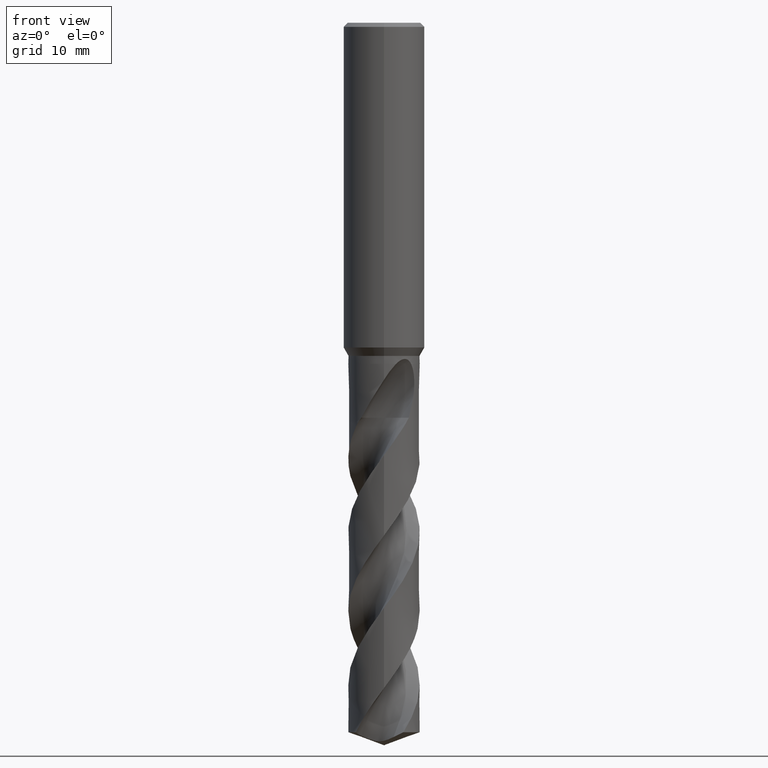
[diagram: clean part render]
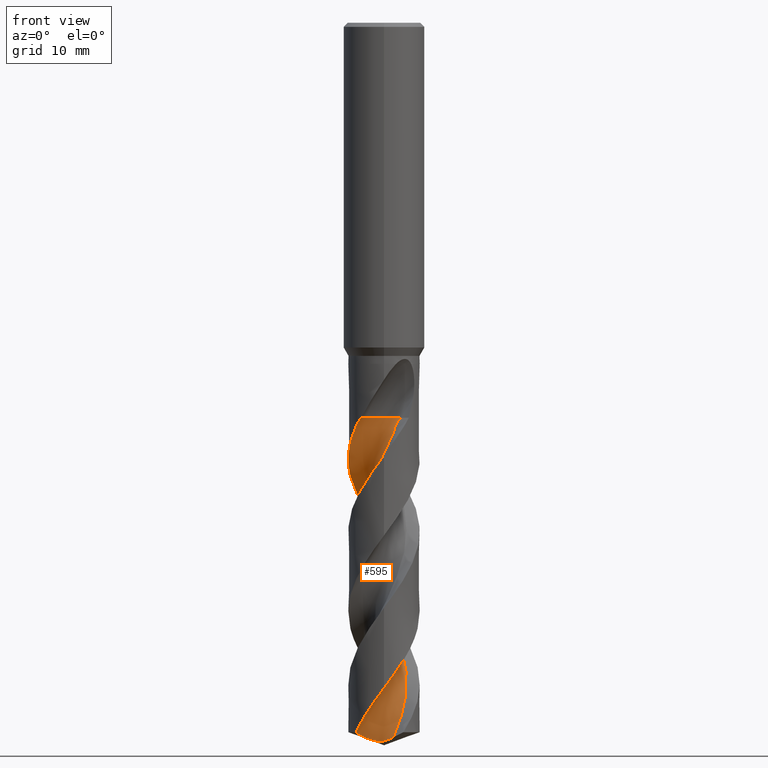
[diagram: same view with one face highlighted and labeled with its STEP entity id]
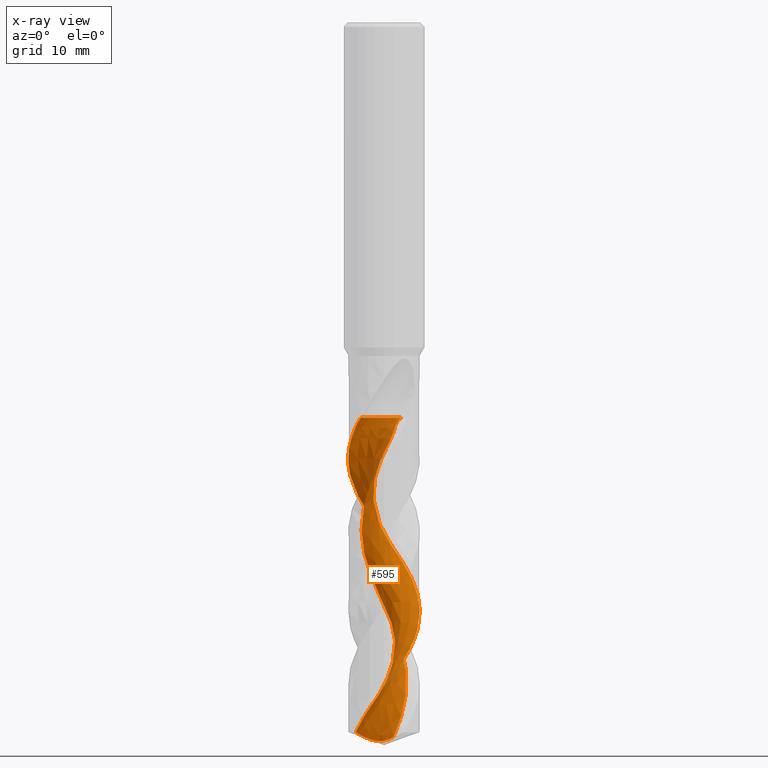
[diagram: x-ray of the same camera — body ghosted, the highlighted face saturated]
A machine part, front view. The second image highlights one B-rep face of the part: STEP entity #595.
The next image is the same camera in x-ray: the body ghosted, the highlighted face saturated — about 0% of this face is hidden behind the body in this view.
In plain terms, the highlighted face is a freeform B-spline surface patch.
Its self-contained STEP definition (entity closure, byte-faithful):
#279=VERTEX_POINT('',#773);
#295=EDGE_CURVE('',#401,#631,#790,.T.);
#301=EDGE_CURVE('',#631,#725,#796,.T.);
#401=VERTEX_POINT('',#905);
#475=EDGE_CURVE('',#591,#701,#986,.T.);
#481=EDGE_CURVE('',#487,#279,#992,.T.);
#483=EDGE_CURVE('',#279,#535,#994,.T.);
#487=VERTEX_POINT('',#998);
#535=VERTEX_POINT('',#1050);
#591=VERTEX_POINT('',#1109);
#595=ADVANCED_FACE('',(#1113),#1114,.F.);
#601=EDGE_CURVE('',#535,#401,#1121,.T.);
#631=VERTEX_POINT('',#1152);
#687=EDGE_CURVE('',#701,#487,#1215,.T.);
#701=VERTEX_POINT('',#1231);
#725=VERTEX_POINT('',#1259);
#733=EDGE_CURVE('',#725,#591,#1267,.T.);
#773=CARTESIAN_POINT('',(-1.72999698641517E-012,4.39994662907025,-63.1689129008051));
#790=CIRCLE('',#1429,2.93333333);
#796=B_SPLINE_CURVE_WITH_KNOTS('',3,(#1436,#1437,#1438,#1439,#1440,#1441,#1442,#1443,#1444,#1445,#1446,#1447,#1448,#1449,#1450,#1451,#1452,#1453,#1454,#1455,#1456,#1457,#1458,#1459,#1460,#1461,#1462,#1463,#1464,#1465,#1466,#1467,#1468,#1469,#1470,#1471,#1472,#1473,#1474,#1475,#1476,#1477,#1478,#1479,#1480,#1481,#1482,#1483,#1484,#1485,#1486,#1487,#1488,#1489,#1490,#1491),.UNSPECIFIED.,.F.,.F.,(4,1,2,1,2,2,2,2,2,1,2,1,2,1,2,1,2,1,2,1,2,1,2,1,2,1,2,1,2,1,2,1,2,2,4),(0.0,0.904180802783714,1.80836160556743,2.71254240835114,3.61672321113486,5.42508481670228,7.23344642226971,9.04180802783714,10.8501696334046,12.658531238972,14.4668928445394,16.2752544501069,18.0836160556743,19.8919776612417,21.7003392668091,23.5087008723766,25.317062477944,27.1254240835114,28.9337856890788,30.7421472946463,32.5505089002137,34.3588705057811,36.1672321113486,37.975593716916,39.7839553224834,41.5923169280508,43.4006785336183,45.2090401391857,47.0174017447531,48.8257633503206,50.634124955888,52.4424865614554,54.2508481670228,56.0592097725903,57.8675713781577),.UNSPECIFIED.);
#905=CARTESIAN_POINT('',(0.353185353426614,-1.34132505732984,-48.6578));
#986=B_SPLINE_CURVE_WITH_KNOTS('',3,(#3239,#3240,#3241,#3242,#3243,#3244,#3245,#3246,#3247,#3248,#3249,#3250,#3251,#3252,#3253,#3254,#3255,#3256,#3257,#3258),.UNSPECIFIED.,.F.,.F.,(4,2,2,2,2,2,2,2,2,4),(0.0,1.81223725163547,3.06223183210201,4.26605195730037,5.62001640945322,7.11389526076117,8.84394077373784,10.8175018849425,12.3151490378371,13.8168819852816),.UNSPECIFIED.);
#992=B_SPLINE_CURVE_WITH_KNOTS('',3,(#3267,#3268,#3269,#3270,#3271,#3272,#3273,#3274,#3275,#3276,#3277,#3278,#3279,#3280,#3281,#3282,#3283,#3284,#3285,#3286,#3287,#3288,#3289,#3290,#3291,#3292,#3293,#3294,#3295,#3296,#3297,#3298,#3299,#3300,#3301,#3302,#3303,#3304,#3305,#3306,#3307,#3308,#3309,#3310,#3311,#3312,#3313,#3314,#3315,#3316,#3317,#3318,#3319,#3320,#3321,#3322,#3323,#3324,#3325,#3326,#3327,#3328,#3329,#3330,#3331,#3332,#3333,#3334,#3335,#3336,#3337,#3338,#3339,#3340,#3341,#3342,#3343,#3344),.UNSPECIFIED.,.F.,.F.,(4,2,2,2,2,2,2,2,2,2,2,2,2,2,2,2,2,2,2,2,2,2,2,2,2,2,2,2,2,2,2,2,2,2,2,2,2,2,4),(0.0,2.38158495089044,3.34370118732634,5.29067246798251,6.92036597297329,7.83185490015238,10.2543834718179,10.8557028205317,13.2841928761481,14.2041513812472,16.7423789497106,17.0420610142299,19.3070623540078,20.4294436426887,22.8589142573478,23.4618247443925,25.8968627470963,26.8316143139627,28.15471933148,29.376904905831,29.5253060991929,31.6178238319261,32.1165925123855,33.0069014695142,35.4463483811164,36.4476094126919,38.883160304454,39.0925028515234,43.3356823436521,44.3980819223111,44.8561609553654,45.9851481560077,46.6349259329818,46.9662502034331,47.2058308303168,47.4181915376629,47.6873889016957,48.2455132953649,49.1459108642999),.UNSPECIFIED.);
#994=B_SPLINE_CURVE_WITH_KNOTS('',3,(#3347,#3348,#3349,#3350,#3351,#3352,#3353,#3354,#3355,#3356,#3357,#3358,#3359,#3360,#3361,#3362,#3363,#3364,#3365,#3366,#3367,#3368,#3369,#3370,#3371,#3372,#3373,#3374,#3375,#3376,#3377,#3378,#3379,#3380,#3381,#3382,#3383,#3384,#3385,#3386,#3387,#3388,#3389,#3390,#3391,#3392,#3393,#3394,#3395,#3396,#3397,#3398,#3399,#3400,#3401,#3402,#3403,#3404,#3405,#3406,#3407,#3408,#3409,#3410,#3411,#3412,#3413,#3414,#3415,#3416,#3417,#3418,#3419,#3420,#3421,#3422,#3423,#3424),.UNSPECIFIED.,.F.,.F.,(4,2,2,2,2,2,2,2,2,2,2,2,2,2,2,2,2,2,2,2,2,2,2,2,2,2,2,2,2,2,2,2,2,2,2,2,2,2,4),(0.0,2.38158495089044,3.34370118732634,5.29067246798251,6.92036597297329,7.83185490015238,10.2543834718179,10.8557028205317,13.2841928761481,14.2041513812472,16.7423789497106,17.0420610142299,19.3070623540078,20.4294436426887,22.8589142573478,23.4618247443925,25.8968627470963,26.8316143139627,28.15471933148,29.376904905831,29.5253060991929,31.6178238319261,32.1165925123855,33.0069014695142,35.4463483811164,36.4476094126919,38.883160304454,39.0925028515234,43.3356823436521,44.3980819223111,44.8561609553654,45.9851481560077,46.6349259329818,46.9662502034331,47.2058308303168,47.4181915376629,47.6873889016957,48.2455132953649,49.1459108642999),.UNSPECIFIED.);
#998=CARTESIAN_POINT('',(3.82202242467658E-015,-4.39998803345578,-81.9658956842433));
#1050=CARTESIAN_POINT('',(-2.80371770920414,-3.39093144555015,-48.6578));
#1109=CARTESIAN_POINT('',(-2.32866079190757E-010,-1.49598930513475,-88.4555044221504));
#1113=FACE_OUTER_BOUND('',#3932,.T.);
#1114=B_SPLINE_SURFACE_WITH_KNOTS('',3,3,((#3933,#3934,#3935,#3936,#3937,#3938,#3939,#3940,#3941,#3942,#3943,#3944,#3945,#3946,#3947,#3948,#3949,#3950,#3951,#3952,#3953,#3954,#3955,#3956,#3957,#3958,#3959,#3960,#3961,#3962,#3963,#3964,#3965,#3966,#3967,#3968,#3969,#3970,#3971,#3972,#3973,#3974,#3975,#3976,#3977,#3978,#3979,#3980,#3981,#3982,#3983,#3984,#3985,#3986,#3987,#3988),(#3989,#3990,#3991,#3992,#3993,#3994,#3995,#3996,#3997,#3998,#3999,#4000,#4001,#4002,#4003,#4004,#4005,#4006,#4007,#4008,#4009,#4010,#4011,#4012,#4013,#4014,#4015,#4016,#4017,#4018,#4019,#4020,#4021,#4022,#4023,#4024,#4025,#4026,#4027,#4028,#4029,#4030,#4031,#4032,#4033,#4034,#4035,#4036,#4037,#4038,#4039,#4040,#4041,#4042,#4043,#4044),(#4045,#4046,#4047,#4048,#4049,#4050,#4051,#4052,#4053,#4054,#4055,#4056,#4057,#4058,#4059,#4060,#4061,#4062,#4063,#4064,#4065,#4066,#4067,#4068,#4069,#4070,#4071,#4072,#4073,#4074,#4075,#4076,#4077,#4078,#4079,#4080,#4081,#4082,#4083,#4084,#4085,#4086,#4087,#4088,#4089,#4090,#4091,#4092,#4093,#4094,#4095,#4096,#4097,#4098,#4099,#4100),(#4101,#4102,#4103,#4104,#4105,#4106,#4107,#4108,#4109,#4110,#4111,#4112,#4113,#4114,#4115,#4116,#4117,#4118,#4119,#4120,#4121,#4122,#4123,#4124,#4125,#4126,#4127,#4128,#4129,#4130,#4131,#4132,#4133,#4134,#4135,#4136,#4137,#4138,#4139,#4140,#4141,#4142,#4143,#4144,#4145,#4146,#4147,#4148,#4149,#4150,#4151,#4152,#4153,#4154,#4155,#4156),(#4157,#4158,#4159,#4160,#4161,#4162,#4163,#4164,#4165,#4166,#4167,#4168,#4169,#4170,#4171,#4172,#4173,#4174,#4175,#4176,#4177,#4178,#4179,#4180,#4181,#4182,#4183,#4184,#4185,#4186,#4187,#4188,#4189,#4190,#4191,#4192,#4193,#4194,#4195,#4196,#4197,#4198,#4199,#4200,#4201,#4202,#4203,#4204,#4205,#4206,#4207,#4208,#4209,#4210,#4211,#4212),(#4213,#4214,#4215,#4216,#4217,#4218,#4219,#4220,#4221,#4222,#4223,#4224,#4225,#4226,#4227,#4228,#4229,#4230,#4231,#4232,#4233,#4234,#4235,#4236,#4237,#4238,#4239,#4240,#4241,#4242,#4243,#4244,#4245,#4246,#4247,#4248,#4249,#4250,#4251,#4252,#4253,#4254,#4255,#4256,#4257,#4258,#4259,#4260,#4261,#4262,#4263,#4264,#4265,#4266,#4267,#4268),(#4269,#4270,#4271,#4272,#4273,#4274,#4275,#4276,#4277,#4278,#4279,#4280,#4281,#4282,#4283,#4284,#4285,#4286,#4287,#4288,#4289,#4290,#4291,#4292,#4293,#4294,#4295,#4296,#4297,#4298,#4299,#4300,#4301,#4302,#4303,#4304,#4305,#4306,#4307,#4308,#4309,#4310,#4311,#4312,#4313,#4314,#4315,#4316,#4317,#4318,#4319,#4320,#4321,#4322,#4323,#4324),(#4325,#4326,#4327,#4328,#4329,#4330,#4331,#4332,#4333,#4334,#4335,#4336,#4337,#4338,#4339,#4340,#4341,#4342,#4343,#4344,#4345,#4346,#4347,#4348,#4349,#4350,#4351,#4352,#4353,#4354,#4355,#4356,#4357,#4358,#4359,#4360,#4361,#4362,#4363,#4364,#4365,#4366,#4367,#4368,#4369,#4370,#4371,#4372,#4373,#4374,#4375,#4376,#4377,#4378,#4379,#4380),(#4381,#4382,#4383,#4384,#4385,#4386,#4387,#4388,#4389,#4390,#4391,#4392,#4393,#4394,#4395,#4396,#4397,#4398,#4399,#4400,#4401,#4402,#4403,#4404,#4405,#4406,#4407,#4408,#4409,#4410,#4411,#4412,#4413,#4414,#4415,#4416,#4417,#4418,#4419,#4420,#4421,#4422,#4423,#4424,#4425,#4426,#4427,#4428,#4429,#4430,#4431,#4432,#4433,#4434,#4435,#4436),(#4437,#4438,#4439,#4440,#4441,#4442,#4443,#4444,#4445,#4446,#4447,#4448,#4449,#4450,#4451,#4452,#4453,#4454,#4455,#4456,#4457,#4458,#4459,#4460,#4461,#4462,#4463,#4464,#4465,#4466,#4467,#4468,#4469,#4470,#4471,#4472,#4473,#4474,#4475,#4476,#4477,#4478,#4479,#4480,#4481,#4482,#4483,#4484,#4485,#4486,#4487,#4488,#4489,#4490,#4491,#4492),(#4493,#4494,#4495,#4496,#4497,#4498,#4499,#4500,#4501,#4502,#4503,#4504,#4505,#4506,#4507,#4508,#4509,#4510,#4511,#4512,#4513,#4514,#4515,#4516,#4517,#4518,#4519,#4520,#4521,#4522,#4523,#4524,#4525,#4526,#4527,#4528,#4529,#4530,#4531,#4532,#4533,#4534,#4535,#4536,#4537,#4538,#4539,#4540,#4541,#4542,#4543,#4544,#4545,#4546,#4547,#4548)),.UNSPECIFIED.,.F.,.F.,.F.,(4,1,1,1,1,1,1,1,4),(4,1,2,1,2,2,2,2,2,1,2,1,2,1,2,1,2,1,2,1,2,1,2,1,2,1,2,1,2,1,2,1,2,2,4),(3.46308721244757E-017,0.392701146002746,0.785402292005493,1.17810343800824,1.57080458401099,1.96350573001373,2.35620687601648,2.74890802201922,3.14160916802197),(0.0,0.904180802783714,1.80836160556743,2.71254240835114,3.61672321113486,5.42508481670228,7.23344642226971,9.04180802783714,10.8501696334046,12.658531238972,14.4668928445394,16.2752544501069,18.0836160556743,19.8919776612417,21.7003392668091,23.5087008723766,25.317062477944,27.1254240835114,28.9337856890788,30.7421472946463,32.5505089002137,34.3588705057811,36.1672321113486,37.975593716916,39.7839553224834,41.5923169280508,43.4006785336183,45.2090401391857,47.0174017447531,48.8257633503206,50.634124955888,52.4424865614554,54.2508481670228,56.0592097725903,57.8675713781577),.UNSPECIFIED.);
#1121=CIRCLE('',#4583,2.93333333);
#1152=CARTESIAN_POINT('',(2.07417988905281,-2.1791534409472,-48.6578));
#1215=B_SPLINE_CURVE_WITH_KNOTS('',3,(#4893,#4894,#4895,#4896,#4897,#4898,#4899,#4900,#4901,#4902,#4903,#4904,#4905,#4906,#4907,#4908,#4909,#4910,#4911,#4912,#4913,#4914,#4915,#4916,#4917,#4918,#4919,#4920,#4921,#4922,#4923,#4924,#4925,#4926,#4927,#4928,#4929,#4930,#4931,#4932,#4933,#4934,#4935,#4936,#4937,#4938,#4939,#4940,#4941,#4942,#4943,#4944,#4945,#4946,#4947,#4948,#4949,#4950,#4951,#4952,#4953,#4954,#4955,#4956,#4957,#4958,#4959,#4960,#4961,#4962,#4963,#4964,#4965,#4966,#4967,#4968,#4969,#4970),.UNSPECIFIED.,.F.,.F.,(4,2,2,2,2,2,2,2,2,2,2,2,2,2,2,2,2,2,2,2,2,2,2,2,2,2,2,2,2,2,2,2,2,2,2,2,2,2,4),(0.0,2.38158495089044,3.34370118732634,5.29067246798251,6.92036597297329,7.83185490015238,10.2543834718179,10.8557028205317,13.2841928761481,14.2041513812472,16.7423789497106,17.0420610142299,19.3070623540078,20.4294436426887,22.8589142573478,23.4618247443925,25.8968627470963,26.8316143139627,28.15471933148,29.376904905831,29.5253060991929,31.6178238319261,32.1165925123855,33.0069014695142,35.4463483811164,36.4476094126919,38.883160304454,39.0925028515234,43.3356823436521,44.3980819223111,44.8561609553654,45.9851481560077,46.6349259329818,46.9662502034331,47.2058308303168,47.4181915376629,47.6873889016957,48.2455132953649,49.1459108642999),.UNSPECIFIED.);
#1231=CARTESIAN_POINT('',(-3.46915379840589,-2.70646853353331,-87.3985309692287));
#1259=CARTESIAN_POINT('',(1.17501866008974,-2.51387019027537,-87.9900096727659));
#1267=B_SPLINE_CURVE_WITH_KNOTS('',3,(#5190,#5191,#5192,#5193,#5194,#5195,#5196,#5197,#5198,#5199,#5200,#5201,#5202,#5203,#5204,#5205,#5206,#5207,#5208,#5209),.UNSPECIFIED.,.F.,.F.,(4,2,2,2,2,2,2,2,2,4),(0.0,1.81223725163547,3.06223183210201,4.26605195730037,5.62001640945322,7.11389526076117,8.84394077373784,10.8175018849425,12.3151490378371,13.8168819852816),.UNSPECIFIED.);
#1429=AXIS2_PLACEMENT_3D('',#5273,#5274,#5275);
#1436=CARTESIAN_POINT('',(2.07417988905281,-2.1791534409472,-48.6578));
#1437=CARTESIAN_POINT('',(1.8639718333336,-2.16990429841924,-48.8676759285766));
#1438=CARTESIAN_POINT('',(1.52904319530745,-2.19349609382863,-49.2854432245408));
#1439=CARTESIAN_POINT('',(1.36448872133504,-2.29474187642045,-49.7028583185072));
#1440=CARTESIAN_POINT('',(1.27026942041603,-2.44543927589953,-50.1259085793267));
#1441=CARTESIAN_POINT('',(1.13865104008408,-2.57039223924982,-50.549769710467));
#1442=CARTESIAN_POINT('',(0.952027715852022,-2.63662813252828,-50.9708516214104));
#1443=CARTESIAN_POINT('',(0.646663541132786,-2.69414827083588,-51.5979793116461));
#1444=CARTESIAN_POINT('',(0.45194462553748,-2.72604703102569,-52.0166901981807));
#1445=CARTESIAN_POINT('',(0.0743043038976952,-2.78070667167012,-52.8595170672823));
#1446=CARTESIAN_POINT('',(-0.122569663456337,-2.77804248387123,-53.2804348700056));
#1447=CARTESIAN_POINT('',(-0.510193556096155,-2.73121512250502,-54.1200375689493));
#1448=CARTESIAN_POINT('',(-0.701600103378455,-2.68583720563564,-54.5401339435775));
#1449=CARTESIAN_POINT('',(-1.07031082580928,-2.56378008326839,-55.3811567145235));
#1450=CARTESIAN_POINT('',(-1.24812463473694,-2.48053405999898,-55.8014467683676));
#1451=CARTESIAN_POINT('',(-1.58358742590656,-2.28829650656867,-56.6418977539579));
#1452=CARTESIAN_POINT('',(-1.89617534399709,-2.04713343306119,-57.4827654679866));
#1453=CARTESIAN_POINT('',(-2.15157420824784,-1.74890976660269,-58.3228413280686));
#1454=CARTESIAN_POINT('',(-2.38084872137337,-1.43934250490698,-59.1635298544311));
#1455=CARTESIAN_POINT('',(-2.56871081507637,-1.09291502592063,-60.0046686386494));
#1456=CARTESIAN_POINT('',(-2.67953851163775,-0.715956547267659,-60.8448137932684));
#1457=CARTESIAN_POINT('',(-2.76144442540257,-0.339195436192136,-61.6853725403441));
#1458=CARTESIAN_POINT('',(-2.79079519018184,0.053915586025855,-62.5264015288021));
#1459=CARTESIAN_POINT('',(-2.73780665218788,0.443145545982621,-63.3665319412588));
#1460=CARTESIAN_POINT('',(-2.65851233569215,0.820398768887024,-64.2071371346796));
#1461=CARTESIAN_POINT('',(-2.52447430393613,1.19110788320053,-65.0482002027563));
#1462=CARTESIAN_POINT('',(-2.31682348386279,1.52458568511769,-65.8883322968379));
#1463=CARTESIAN_POINT('',(-2.09010618935252,1.83637187961148,-66.7289234257368));
#1464=CARTESIAN_POINT('',(-1.81613118746463,2.11978751907803,-67.5699774966009));
#1465=CARTESIAN_POINT('',(-1.49021346789624,2.33910762499841,-68.4101095241635));
#1466=CARTESIAN_POINT('',(-1.15575861781145,2.53082238456275,-69.250703374305));
#1467=CARTESIAN_POINT('',(-0.789793396822397,2.67731430792373,-70.0917588545088));
#1468=CARTESIAN_POINT('',(-0.402666044414476,2.74407512300179,-70.9318907841035));
#1469=CARTESIAN_POINT('',(-0.0190469859791691,2.78215926830503,-71.7724844335836));
#1470=CARTESIAN_POINT('',(0.374821076637305,2.76608485936206,-72.6135397501468));
#1471=CARTESIAN_POINT('',(0.755375755433507,2.66859682498009,-73.453671280665));
#1472=CARTESIAN_POINT('',(1.12099513093762,2.54637716744696,-74.2942642526506));
#1473=CARTESIAN_POINT('',(1.47380546223622,2.37055424964033,-75.1353201117657));
#1474=CARTESIAN_POINT('',(1.78115886463382,2.12589611113904,-75.9754552411094));
#1475=CARTESIAN_POINT('',(2.06476501753232,1.86477701234535,-76.8160533030415));
#1476=CARTESIAN_POINT('',(2.3147452486907,1.5599724823157,-77.6571074862765));
#1477=CARTESIAN_POINT('',(2.49508504349774,1.21097507165671,-78.4972290205384));
#1478=CARTESIAN_POINT('',(2.64704068715275,0.856699034988435,-79.3378098060171));
#1479=CARTESIAN_POINT('',(2.75045294617039,0.476331047890566,-80.178873843695));
#1480=CARTESIAN_POINT('',(2.77213875763076,0.0840443795365639,-81.0190434200907));
#1481=CARTESIAN_POINT('',(2.76564328564771,-0.301493784493326,-81.8596782159496));
#1482=CARTESIAN_POINT('',(2.70427688713766,-0.690920145666587,-82.7006988152319));
#1483=CARTESIAN_POINT('',(2.56415204658453,-1.05764132240965,-83.5407275640097));
#1484=CARTESIAN_POINT('',(2.40154253660123,-1.40674171810427,-84.381236753118));
#1485=CARTESIAN_POINT('',(2.18627954145254,-1.7369805212975,-85.2224286739763));
#1486=CARTESIAN_POINT('',(1.90558463932615,-2.01345309661366,-86.0627920588931));
#1487=CARTESIAN_POINT('',(1.61044967848309,-2.2637292139159,-86.9034696096343));
#1488=CARTESIAN_POINT('',(1.44651323297927,-2.37117289146315,-87.323659807285));
#1489=CARTESIAN_POINT('',(1.10676739232159,-2.5545761110191,-88.1634698729133));
#1490=CARTESIAN_POINT('',(0.919316465245742,-2.62134041244946,-88.583680621754));
#1491=CARTESIAN_POINT('',(0.72474079646964,-2.66455319621238,-89.0035220369402));
#3239=CARTESIAN_POINT('',(1.17501866008955,-2.51387019027537,-87.9900096727661));
#3240=CARTESIAN_POINT('',(0.802995410547621,-2.08189581233924,-88.1897804869168));
#3241=CARTESIAN_POINT('',(0.377260883597099,-1.73466840612265,-88.36894433677));
#3242=CARTESIAN_POINT('',(-0.265922506821723,-1.32774642089215,-88.5165222721554));
#3243=CARTESIAN_POINT('',(-0.504609941428045,-1.21101254068433,-88.5306470611463));
#3244=CARTESIAN_POINT('',(-0.97096674135522,-1.05811383436047,-88.4841976210846));
#3245=CARTESIAN_POINT('',(-1.19157981880949,-1.02414619047228,-88.4298976197838));
#3246=CARTESIAN_POINT('',(-1.64147668093972,-1.0273749754434,-88.2970018168524));
#3247=CARTESIAN_POINT('',(-1.88626034358972,-1.07378398160696,-88.2100821650264));
#3248=CARTESIAN_POINT('',(-2.39270793575342,-1.28225708478736,-88.012025142438));
#3249=CARTESIAN_POINT('',(-2.63204894112304,-1.44686158193718,-87.9071411485262));
#3250=CARTESIAN_POINT('',(-3.07288137223497,-1.88790754134304,-87.6877128452091));
#3251=CARTESIAN_POINT('',(-3.25826324528889,-2.17352585258122,-87.5758749846935));
#3252=CARTESIAN_POINT('',(-3.53697787564818,-2.84467083602568,-87.349556864223));
#3253=CARTESIAN_POINT('',(-3.61157534710953,-3.23292997037422,-87.2386130515547));
#3254=CARTESIAN_POINT('',(-3.61771430587674,-3.92499872064791,-87.0586419946886));
#3255=CARTESIAN_POINT('',(-3.57943546595074,-4.22454537225917,-86.9865484449242));
#3256=CARTESIAN_POINT('',(-3.42685767570633,-4.80852908730285,-86.8526400941439));
#3257=CARTESIAN_POINT('',(-3.31269386337102,-5.09165923761881,-86.791151843099));
#3258=CARTESIAN_POINT('',(-3.16459666223511,-5.35773533924272,-86.7351807769627));
#3267=CARTESIAN_POINT('',(-3.46915379840589,-2.70646853353331,-87.3985309692287));
#3268=CARTESIAN_POINT('',(-3.1803964228995,-3.07659570441037,-86.7583424225636));
#3269=CARTESIAN_POINT('',(-2.83327118045812,-3.39931184709052,-86.1197666417535));
#3270=CARTESIAN_POINT('',(-2.2818897068025,-3.76686789174357,-85.2226123123871));
#3271=CARTESIAN_POINT('',(-2.11660936969238,-3.86214916523605,-84.9652323246042));
#3272=CARTESIAN_POINT('',(-1.60007220393274,-4.11682776126019,-84.1842780281894));
#3273=CARTESIAN_POINT('',(-1.2340645036627,-4.24089929072817,-83.6575943220288));
#3274=CARTESIAN_POINT('',(-0.540355518509492,-4.37855789974573,-82.6971689777573));
#3275=CARTESIAN_POINT('',(-0.218538585852125,-4.4063218776863,-82.2634886502563));
#3276=CARTESIAN_POINT('',(0.283048142973554,-4.39455996907959,-81.5807657817278));
#3277=CARTESIAN_POINT('',(0.462162381974915,-4.37933259579746,-81.3347103216042));
#3278=CARTESIAN_POINT('',(1.11220879490972,-4.28378017847675,-80.4391926625833));
#3279=CARTESIAN_POINT('',(1.56968494987055,-4.13803677192044,-79.8014214454456));
#3280=CARTESIAN_POINT('',(2.10024107413193,-3.86818247139248,-78.9896309297375));
#3281=CARTESIAN_POINT('',(2.20332780556996,-3.81040248370387,-78.8277149807483));
#3282=CARTESIAN_POINT('',(2.71098381098477,-3.49835838486062,-78.0144367358386));
#3283=CARTESIAN_POINT('',(3.07442466129989,-3.18372277121976,-77.3756666758601));
#3284=CARTESIAN_POINT('',(3.49621759394151,-2.67750315328681,-76.4782951018136));
#3285=CARTESIAN_POINT('',(3.60323298876667,-2.53165087285002,-76.230578166167));
#3286=CARTESIAN_POINT('',(3.97116814208404,-1.95933090855737,-75.3036798473211));
#3287=CARTESIAN_POINT('',(4.16729758162601,-1.49710400375605,-74.6380670591931));
#3288=CARTESIAN_POINT('',(4.29541059483916,-0.955322952923458,-73.8770246050214));
#3289=CARTESIAN_POINT('',(4.30778231064306,-0.897898088485632,-73.7965710558122));
#3290=CARTESIAN_POINT('',(4.4040716534334,-0.402827652028052,-73.1075130558751));
#3291=CARTESIAN_POINT('',(4.4223525052396,0.0452173361527509,-72.5096445315346));
#3292=CARTESIAN_POINT('',(4.3480844323381,0.709120451653712,-71.6021063705277));
#3293=CARTESIAN_POINT('',(4.30697542805313,0.926438313306569,-71.299703015499));
#3294=CARTESIAN_POINT('',(4.12623651700447,1.6005389423067,-70.34832407634));
#3295=CARTESIAN_POINT('',(3.92853516383109,2.03805830711415,-69.7105745748985));
#3296=CARTESIAN_POINT('',(3.59909686909455,2.53380121647084,-68.8988041572167));
#3297=CARTESIAN_POINT('',(3.52978536515056,2.62949402668498,-68.7369229028092));
#3298=CARTESIAN_POINT('',(3.16108960661573,3.09762205083598,-67.9237217683344));
#3299=CARTESIAN_POINT('',(2.80651857472819,3.42219102070486,-67.2849777525448));
#3300=CARTESIAN_POINT('',(2.25292137936315,3.78385840179016,-66.3843320796177));
#3301=CARTESIAN_POINT('',(2.09348967638199,3.87434389635986,-66.1333055428448));
#3302=CARTESIAN_POINT('',(1.69522069365829,4.06856552800041,-65.5297362118507));
#3303=CARTESIAN_POINT('',(1.45186461855274,4.16167371609789,-65.1783120107407));
#3304=CARTESIAN_POINT('',(0.969737959431307,4.29849688731618,-64.4993239095512));
#3305=CARTESIAN_POINT('',(0.733935949650395,4.34489388859624,-64.1745691379449));
#3306=CARTESIAN_POINT('',(0.46740690548098,4.3751476610442,-63.8077349555846));
#3307=CARTESIAN_POINT('',(0.438576216831301,4.37813150235054,-63.7680404623934));
#3308=CARTESIAN_POINT('',(0.0021525042548699,4.41894244545776,-63.1684530421063));
#3309=CARTESIAN_POINT('',(-0.409533303735592,4.40011213727973,-62.6168266667392));
#3310=CARTESIAN_POINT('',(-0.910108060465379,4.30590544840726,-61.9261015289531));
#3311=CARTESIAN_POINT('',(-1.00571706202835,4.28457767261467,-61.7931930189526));
#3312=CARTESIAN_POINT('',(-1.26949201398045,4.21644113821949,-61.4224719947126));
#3313=CARTESIAN_POINT('',(-1.43543391561563,4.162854970397,-61.1837342356006));
#3314=CARTESIAN_POINT('',(-2.04241495625189,3.92629567539953,-60.2954273686774));
#3315=CARTESIAN_POINT('',(-2.45563932659236,3.68194777438593,-59.6577661456201));
#3316=CARTESIAN_POINT('',(-2.97177190933298,3.25058954187481,-58.7405876399183));
#3317=CARTESIAN_POINT('',(-3.11359827311334,3.11503952643453,-58.4720122011945));
#3318=CARTESIAN_POINT('',(-3.56840698762915,2.61798614549533,-57.5550494459702));
#3319=CARTESIAN_POINT('',(-3.83076320652685,2.21618127689767,-56.9179024561157));
#3320=CARTESIAN_POINT('',(-4.04006343037549,1.74326088600366,-56.2118697728391));
#3321=CARTESIAN_POINT('',(-4.05611000926772,1.70559415597843,-56.1559273623326));
#3322=CARTESIAN_POINT('',(-4.38704874764029,0.897557251305374,-54.9644509027117));
#3323=CARTESIAN_POINT('',(-4.47702745305198,0.0546443095364302,-53.8653526064181));
#3324=CARTESIAN_POINT('',(-4.29750123733959,-0.966384462570675,-52.449410567059));
#3325=CARTESIAN_POINT('',(-4.24708118290333,-1.16858388909872,-52.1623765910242));
#3326=CARTESIAN_POINT('',(-4.15378196496091,-1.45381532102781,-51.7559828303299));
#3327=CARTESIAN_POINT('',(-4.12291210153629,-1.53922802587223,-51.6338254598079));
#3328=CARTESIAN_POINT('',(-4.00626577368128,-1.83294124953026,-51.2116934783656));
#3329=CARTESIAN_POINT('',(-3.90967938731549,-2.03054430680825,-50.9277287562338));
#3330=CARTESIAN_POINT('',(-3.73278473364405,-2.33280275934906,-50.4431253429312));
#3331=CARTESIAN_POINT('',(-3.66512333229338,-2.43736576533068,-50.2651290174812));
#3332=CARTESIAN_POINT('',(-3.55996077340138,-2.58645517919635,-49.9903350008551));
#3333=CARTESIAN_POINT('',(-3.53735191939729,-2.61694058494182,-49.9300585913878));
#3334=CARTESIAN_POINT('',(-3.49133276403946,-2.67785237826844,-49.8142623645579));
#3335=CARTESIAN_POINT('',(-3.4713831860311,-2.70367888353546,-49.7661516536303));
#3336=CARTESIAN_POINT('',(-3.43238740430708,-2.75297253079352,-49.676141418578));
#3337=CARTESIAN_POINT('',(-3.4135296567496,-2.77633148023463,-49.63423519901));
#3338=CARTESIAN_POINT('',(-3.36944727315664,-2.82976868969094,-49.5399822919276));
#3339=CARTESIAN_POINT('',(-3.34391804543364,-2.85991330779975,-49.4879471589267));
#3340=CARTESIAN_POINT('',(-3.26248818993119,-2.95337536643257,-49.3297919505261));
#3341=CARTESIAN_POINT('',(-3.2037173056488,-3.01721438830589,-49.2261815030039));
#3342=CARTESIAN_POINT('',(-3.03871915577846,-3.18537165105081,-48.9617617490906));
#3343=CARTESIAN_POINT('',(-2.92679526805407,-3.2891678766563,-48.8069555981559));
#3344=CARTESIAN_POINT('',(-2.80371770920414,-3.39093144555015,-48.6578));
#3347=CARTESIAN_POINT('',(-3.46915379840589,-2.70646853353331,-87.3985309692287));
#3348=CARTESIAN_POINT('',(-3.1803964228995,-3.07659570441037,-86.7583424225636));
#3349=CARTESIAN_POINT('',(-2.83327118045812,-3.39931184709052,-86.1197666417535));
#3350=CARTESIAN_POINT('',(-2.2818897068025,-3.76686789174357,-85.2226123123871));
#3351=CARTESIAN_POINT('',(-2.11660936969238,-3.86214916523605,-84.9652323246042));
#3352=CARTESIAN_POINT('',(-1.60007220393274,-4.11682776126019,-84.1842780281894));
#3353=CARTESIAN_POINT('',(-1.2340645036627,-4.24089929072817,-83.6575943220288));
#3354=CARTESIAN_POINT('',(-0.540355518509492,-4.37855789974573,-82.6971689777573));
#3355=CARTESIAN_POINT('',(-0.218538585852125,-4.4063218776863,-82.2634886502563));
#3356=CARTESIAN_POINT('',(0.283048142973554,-4.39455996907959,-81.5807657817278));
#3357=CARTESIAN_POINT('',(0.462162381974915,-4.37933259579746,-81.3347103216042));
#3358=CARTESIAN_POINT('',(1.11220879490972,-4.28378017847675,-80.4391926625833));
#3359=CARTESIAN_POINT('',(1.56968494987055,-4.13803677192044,-79.8014214454456));
#3360=CARTESIAN_POINT('',(2.10024107413193,-3.86818247139248,-78.9896309297375));
#3361=CARTESIAN_POINT('',(2.20332780556996,-3.81040248370387,-78.8277149807483));
#3362=CARTESIAN_POINT('',(2.71098381098477,-3.49835838486062,-78.0144367358386));
#3363=CARTESIAN_POINT('',(3.07442466129989,-3.18372277121976,-77.3756666758601));
#3364=CARTESIAN_POINT('',(3.49621759394151,-2.67750315328681,-76.4782951018136));
#3365=CARTESIAN_POINT('',(3.60323298876667,-2.53165087285002,-76.230578166167));
#3366=CARTESIAN_POINT('',(3.97116814208404,-1.95933090855737,-75.3036798473211));
#3367=CARTESIAN_POINT('',(4.16729758162601,-1.49710400375605,-74.6380670591931));
#3368=CARTESIAN_POINT('',(4.29541059483916,-0.955322952923458,-73.8770246050214));
#3369=CARTESIAN_POINT('',(4.30778231064306,-0.897898088485632,-73.7965710558122));
#3370=CARTESIAN_POINT('',(4.4040716534334,-0.402827652028052,-73.1075130558751));
#3371=CARTESIAN_POINT('',(4.4223525052396,0.0452173361527509,-72.5096445315346));
#3372=CARTESIAN_POINT('',(4.3480844323381,0.709120451653712,-71.6021063705277));
#3373=CARTESIAN_POINT('',(4.30697542805313,0.926438313306569,-71.299703015499));
#3374=CARTESIAN_POINT('',(4.12623651700447,1.6005389423067,-70.34832407634));
#3375=CARTESIAN_POINT('',(3.92853516383109,2.03805830711415,-69.7105745748985));
#3376=CARTESIAN_POINT('',(3.59909686909455,2.53380121647084,-68.8988041572167));
#3377=CARTESIAN_POINT('',(3.52978536515056,2.62949402668498,-68.7369229028092));
#3378=CARTESIAN_POINT('',(3.16108960661573,3.09762205083598,-67.9237217683344));
#3379=CARTESIAN_POINT('',(2.80651857472819,3.42219102070486,-67.2849777525448));
#3380=CARTESIAN_POINT('',(2.25292137936315,3.78385840179016,-66.3843320796177));
#3381=CARTESIAN_POINT('',(2.09348967638199,3.87434389635986,-66.1333055428448));
#3382=CARTESIAN_POINT('',(1.69522069365829,4.06856552800041,-65.5297362118507));
#3383=CARTESIAN_POINT('',(1.45186461855274,4.16167371609789,-65.1783120107407));
#3384=CARTESIAN_POINT('',(0.969737959431307,4.29849688731618,-64.4993239095512));
#3385=CARTESIAN_POINT('',(0.733935949650395,4.34489388859624,-64.1745691379449));
#3386=CARTESIAN_POINT('',(0.46740690548098,4.3751476610442,-63.8077349555846));
#3387=CARTESIAN_POINT('',(0.438576216831301,4.37813150235054,-63.7680404623934));
#3388=CARTESIAN_POINT('',(0.0021525042548699,4.41894244545776,-63.1684530421063));
#3389=CARTESIAN_POINT('',(-0.409533303735592,4.40011213727973,-62.6168266667392));
#3390=CARTESIAN_POINT('',(-0.910108060465379,4.30590544840726,-61.9261015289531));
#3391=CARTESIAN_POINT('',(-1.00571706202835,4.28457767261467,-61.7931930189526));
#3392=CARTESIAN_POINT('',(-1.26949201398045,4.21644113821949,-61.4224719947126));
#3393=CARTESIAN_POINT('',(-1.43543391561563,4.162854970397,-61.1837342356006));
#3394=CARTESIAN_POINT('',(-2.04241495625189,3.92629567539953,-60.2954273686774));
#3395=CARTESIAN_POINT('',(-2.45563932659236,3.68194777438593,-59.6577661456201));
#3396=CARTESIAN_POINT('',(-2.97177190933298,3.25058954187481,-58.7405876399183));
#3397=CARTESIAN_POINT('',(-3.11359827311334,3.11503952643453,-58.4720122011945));
#3398=CARTESIAN_POINT('',(-3.56840698762915,2.61798614549533,-57.5550494459702));
#3399=CARTESIAN_POINT('',(-3.83076320652685,2.21618127689767,-56.9179024561157));
#3400=CARTESIAN_POINT('',(-4.04006343037549,1.74326088600366,-56.2118697728391));
#3401=CARTESIAN_POINT('',(-4.05611000926772,1.70559415597843,-56.1559273623326));
#3402=CARTESIAN_POINT('',(-4.38704874764029,0.897557251305374,-54.9644509027117));
#3403=CARTESIAN_POINT('',(-4.47702745305198,0.0546443095364302,-53.8653526064181));
#3404=CARTESIAN_POINT('',(-4.29750123733959,-0.966384462570675,-52.449410567059));
#3405=CARTESIAN_POINT('',(-4.24708118290333,-1.16858388909872,-52.1623765910242));
#3406=CARTESIAN_POINT('',(-4.15378196496091,-1.45381532102781,-51.7559828303299));
#3407=CARTESIAN_POINT('',(-4.12291210153629,-1.53922802587223,-51.6338254598079));
#3408=CARTESIAN_POINT('',(-4.00626577368128,-1.83294124953026,-51.2116934783656));
#3409=CARTESIAN_POINT('',(-3.90967938731549,-2.03054430680825,-50.9277287562338));
#3410=CARTESIAN_POINT('',(-3.73278473364405,-2.33280275934906,-50.4431253429312));
#3411=CARTESIAN_POINT('',(-3.66512333229338,-2.43736576533068,-50.2651290174812));
#3412=CARTESIAN_POINT('',(-3.55996077340138,-2.58645517919635,-49.9903350008551));
#3413=CARTESIAN_POINT('',(-3.53735191939729,-2.61694058494182,-49.9300585913878));
#3414=CARTESIAN_POINT('',(-3.49133276403946,-2.67785237826844,-49.8142623645579));
#3415=CARTESIAN_POINT('',(-3.4713831860311,-2.70367888353546,-49.7661516536303));
#3416=CARTESIAN_POINT('',(-3.43238740430708,-2.75297253079352,-49.676141418578));
#3417=CARTESIAN_POINT('',(-3.4135296567496,-2.77633148023463,-49.63423519901));
#3418=CARTESIAN_POINT('',(-3.36944727315664,-2.82976868969094,-49.5399822919276));
#3419=CARTESIAN_POINT('',(-3.34391804543364,-2.85991330779975,-49.4879471589267));
#3420=CARTESIAN_POINT('',(-3.26248818993119,-2.95337536643257,-49.3297919505261));
#3421=CARTESIAN_POINT('',(-3.2037173056488,-3.01721438830589,-49.2261815030039));
#3422=CARTESIAN_POINT('',(-3.03871915577846,-3.18537165105081,-48.9617617490906));
#3423=CARTESIAN_POINT('',(-2.92679526805407,-3.2891678766563,-48.8069555981559));
#3424=CARTESIAN_POINT('',(-2.80371770920414,-3.39093144555015,-48.6578));
#3932=EDGE_LOOP('',(#5627,#5628,#5629,#5630,#5631,#5632,#5633,#5634));
#3933=CARTESIAN_POINT('',(-2.07417988905281,-6.3275132190528,-48.6578));
#3934=CARTESIAN_POINT('',(-2.29045887339922,-6.31219314494635,-48.8675179982842));
#3935=CARTESIAN_POINT('',(-2.72795988894873,-6.23614305774731,-49.2904443951269));
#3936=CARTESIAN_POINT('',(-3.15991191980638,-6.03870602629806,-49.7146965551795));
#3937=CARTESIAN_POINT('',(-3.57234818357346,-5.76757357300788,-50.1323110039057));
#3938=CARTESIAN_POINT('',(-3.96820839033116,-5.48358813558088,-50.5486783406339));
#3939=CARTESIAN_POINT('',(-4.33708441827559,-5.18199629795653,-50.9679012492096));
#3940=CARTESIAN_POINT('',(-4.87203890519574,-4.72021920739671,-51.6018954564626));
#3941=CARTESIAN_POINT('',(-5.19538388912799,-4.37090941302989,-52.024041873465));
#3942=CARTESIAN_POINT('',(-5.75097197328598,-3.59559009733367,-52.8621973677095));
#3943=CARTESIAN_POINT('',(-5.98976485350469,-3.18134013715005,-53.2817799323982));
#3944=CARTESIAN_POINT('',(-6.37632091240959,-2.31275093787993,-54.123466205401));
#3945=CARTESIAN_POINT('',(-6.5244173407548,-1.85897686821109,-54.5439927978166));
#3946=CARTESIAN_POINT('',(-6.71948940256,-0.92804496037481,-55.3841116923357));
#3947=CARTESIAN_POINT('',(-6.76893589413593,-0.452711126163473,-55.8044150119381));
#3948=CARTESIAN_POINT('',(-6.76236401181505,0.499468978557284,-56.6451671820766));
#3949=CARTESIAN_POINT('',(-6.66012492703473,1.44850715798984,-57.4854549769197));
#3950=CARTESIAN_POINT('',(-6.36328042355642,2.35653535561272,-58.3266284700561));
#3951=CARTESIAN_POINT('',(-5.96673980794255,3.22268251685457,-59.1671170637246));
#3952=CARTESIAN_POINT('',(-5.4843081385887,4.04666539278032,-60.0071022249712));
#3953=CARTESIAN_POINT('',(-4.84172731320438,4.75375429747231,-60.8481973719202));
#3954=CARTESIAN_POINT('',(-4.12564820491725,5.38196586321038,-61.6888304809813));
#3955=CARTESIAN_POINT('',(-3.34840802827442,5.93651173887558,-62.5289382555391));
#3956=CARTESIAN_POINT('',(-2.47279579061382,6.31874066638498,-63.3700501213689));
#3957=CARTESIAN_POINT('',(-1.56236173605255,6.59891455794496,-64.2106314677358));
#3958=CARTESIAN_POINT('',(-0.62625757809594,6.78687616142092,-65.0507011849049));
#3959=CARTESIAN_POINT('',(0.329114783983925,6.77738151431571,-65.8918111047117));
#3960=CARTESIAN_POINT('',(1.2744980177928,6.6605022412093,-66.7324081230761));
#3961=CARTESIAN_POINT('',(2.20556404521952,6.44897189376006,-67.5724878743181));
#3962=CARTESIAN_POINT('',(3.07340755851372,6.04939162991264,-68.4135978900097));
#3963=CARTESIAN_POINT('',(3.88820185118345,5.55592551929358,-69.2541919056058));
#3964=CARTESIAN_POINT('',(4.65120754796999,4.98195363571787,-70.0942701364664));
#3965=CARTESIAN_POINT('',(5.27958335774703,4.2622603848828,-70.9353802426254));
#3966=CARTESIAN_POINT('',(5.82113719932088,3.47860406568112,-71.775974373907));
#3967=CARTESIAN_POINT('',(6.28249577671825,2.64268074099606,-72.6160525894268));
#3968=CARTESIAN_POINT('',(6.56138775579429,1.72888098622388,-73.4571631956526));
#3969=CARTESIAN_POINT('',(6.73488833059729,0.79224312078022,-74.2977584802339));
#3970=CARTESIAN_POINT('',(6.81382646646958,-0.159274364057886,-75.1378368277317));
#3971=CARTESIAN_POINT('',(6.6944032532912,-1.10719433649081,-75.9789432135504));
#3972=CARTESIAN_POINT('',(6.46946968275962,-2.03283290484609,-76.8195313325284));
#3973=CARTESIAN_POINT('',(6.15216848031074,-2.93335873058204,-77.6596087945639));
#3974=CARTESIAN_POINT('',(5.65534060271289,-3.74943223201159,-78.5007310978297));
#3975=CARTESIAN_POINT('',(5.07134884731149,-4.50198806656152,-79.34134401196));
#3976=CARTESIAN_POINT('',(4.41335093046421,-5.19381922413581,-80.1814207183025));
#3977=CARTESIAN_POINT('',(3.62613377292873,-5.73518664198861,-81.0224865207292));
#3978=CARTESIAN_POINT('',(2.78539077692945,-6.18301653389167,-81.8630184220517));
#3979=CARTESIAN_POINT('',(1.90188892040866,-6.5451804218187,-82.7031051613461));
#3980=CARTESIAN_POINT('',(0.961904235778902,-6.71680391723603,-83.5443400098506));
#3981=CARTESIAN_POINT('',(0.0113790668394966,-6.78078841111497,-84.3850919989871));
#3982=CARTESIAN_POINT('',(-0.942732421065508,-6.74930291610407,-85.2251350852483));
#3983=CARTESIAN_POINT('',(-1.87038272022482,-6.52266621589252,-86.0660202649503));
#3984=CARTESIAN_POINT('',(-2.7641503162413,-6.19485521443763,-86.906416759451));
#3985=CARTESIAN_POINT('',(-3.19364657757786,-5.98510100914899,-87.3267122315644));
#3986=CARTESIAN_POINT('',(-3.99775613086307,-5.47610608937582,-88.1671248178668));
#3987=CARTESIAN_POINT('',(-4.37311456043286,-5.18371499442702,-88.5865818159005));
#3988=CARTESIAN_POINT('',(-4.7162664138336,-4.85845575596925,-89.0066514025781));
#3989=CARTESIAN_POINT('',(-2.34567949490584,-6.05599094595573,-48.6578));
#3990=CARTESIAN_POINT('',(-2.56156111903647,-6.04027354667439,-48.8675064155172));
#3991=CARTESIAN_POINT('',(-2.99254038527764,-5.95751035448193,-49.2908111793054));
#3992=CARTESIAN_POINT('',(-3.40494131424314,-5.74257202056317,-49.7155647700166));
#3993=CARTESIAN_POINT('',(-3.7897688869173,-5.4506140781154,-50.1327805550058));
#3994=CARTESIAN_POINT('',(-4.15886387915741,-5.14933534290166,-50.5485983006806));
#3995=CARTESIAN_POINT('',(-4.50366475895794,-4.83581593250236,-50.9676848691215));
#3996=CARTESIAN_POINT('',(-5.00463062446416,-4.35901356307793,-51.6021826665597));
#3997=CARTESIAN_POINT('',(-5.30302440415744,-4.00128610551944,-52.0245810422732));
#3998=CARTESIAN_POINT('',(-5.80429031683238,-3.21432244898273,-52.8623939417126));
#3999=CARTESIAN_POINT('',(-6.01614472202393,-2.79732998760065,-53.2818785872379));
#4000=CARTESIAN_POINT('',(-6.3489161928007,-1.92881294453617,-54.1237176525479));
#4001=CARTESIAN_POINT('',(-6.47028308618818,-1.47787467719703,-54.544275801937));
#4002=CARTESIAN_POINT('',(-6.61241469496328,-0.558309656415189,-55.384328413104));
#4003=CARTESIAN_POINT('',(-6.63619931379369,-0.091378564639062,-55.8046326947499));
#4004=CARTESIAN_POINT('',(-6.57988996830293,0.838413202594239,-56.6454069686834));
#4005=CARTESIAN_POINT('',(-6.43132150134598,1.76029896175842,-57.4856522216216));
#4006=CARTESIAN_POINT('',(-6.09456663660526,2.63218097179082,-58.3269062172327));
#4007=CARTESIAN_POINT('',(-5.66159949957019,3.4573668996436,-59.1673801497917));
#4008=CARTESIAN_POINT('',(-5.14791362611002,4.23747768779832,-60.0072807063316));
#4009=CARTESIAN_POINT('',(-4.48372775237368,4.89525488400011,-60.8484455164639));
#4010=CARTESIAN_POINT('',(-3.75119335691518,5.47123748100383,-61.6890840919042));
#4011=CARTESIAN_POINT('',(-2.96338946432692,5.97299144942093,-62.5291242980531));
#4012=CARTESIAN_POINT('',(-2.08823772097209,6.30137946406649,-63.3703081384416));
#4013=CARTESIAN_POINT('',(-1.18415981097406,6.5271553416359,-64.2108877467802));
#4014=CARTESIAN_POINT('',(-0.260018696978105,6.66262217029621,-65.050884607787));
#4015=CARTESIAN_POINT('',(0.672903964254672,6.60418986538774,-65.8920662313889));
#4016=CARTESIAN_POINT('',(1.59022897437014,6.44027496412848,-66.7326636982766));
#4017=CARTESIAN_POINT('',(2.4888989452517,6.18573929393883,-67.5726719916882));
#4018=CARTESIAN_POINT('',(3.31623376002594,5.75069154344902,-68.4138537039963));
#4019=CARTESIAN_POINT('',(4.08618150618131,5.22578901481432,-69.2544477756579));
#4020=CARTESIAN_POINT('',(4.80203169876835,4.62583276742753,-70.0944543075106));
#4021=CARTESIAN_POINT('',(5.37893319241628,3.89035190705846,-70.9356361483527));
#4022=CARTESIAN_POINT('',(5.86670353913785,3.09636099147623,-71.7762303356998));
#4023=CARTESIAN_POINT('',(6.27440273754808,2.25602265205901,-72.6162368749522));
#4024=CARTESIAN_POINT('',(6.49986716389675,1.34887900021853,-73.4574192926057));
#4025=CARTESIAN_POINT('',(6.62006444423698,0.424817594890127,-74.2980147453833));
#4026=CARTESIAN_POINT('',(6.6482340438869,-0.508772806967352,-75.1380214035476));
#4027=CARTESIAN_POINT('',(6.48278333269414,-1.42875818970188,-75.9791990204739));
#4028=CARTESIAN_POINT('',(6.21435822593294,-2.32111090276494,-76.8197864106013));
#4029=CARTESIAN_POINT('',(5.85806857207751,-3.18450647178474,-77.6597922254438));
#4030=CARTESIAN_POINT('',(5.33067229749056,-3.95625788148314,-78.5009879681955));
#4031=CARTESIAN_POINT('',(4.72061507993045,-4.66064469722357,-79.3416031810083));
#4032=CARTESIAN_POINT('',(4.04223395857905,-5.30264065141274,-80.1816075563202));
#4033=CARTESIAN_POINT('',(3.24526165199048,-5.79106473355283,-81.0227389641242));
#4034=CARTESIAN_POINT('',(2.40044395385064,-6.18429279961873,-81.8632634648102));
#4035=CARTESIAN_POINT('',(1.51872867437769,-6.49264791819947,-82.7032815832676));
#4036=CARTESIAN_POINT('',(0.591515401826295,-6.6119208790396,-83.5446049909215));
#4037=CARTESIAN_POINT('',(-0.340346689970801,-6.62433691098965,-84.3853746967331));
#4038=CARTESIAN_POINT('',(-1.27078127103682,-6.54449472615064,-85.2253335905321));
#4039=CARTESIAN_POINT('',(-2.16550117111836,-6.27551602085146,-86.0662570305814));
#4040=CARTESIAN_POINT('',(-3.02143121905829,-5.90852600784427,-86.9066328930047));
#4041=CARTESIAN_POINT('',(-3.43016608621504,-5.68139173006516,-87.32693604418));
#4042=CARTESIAN_POINT('',(-4.18895672773991,-5.14200599848935,-88.1673929221704));
#4043=CARTESIAN_POINT('',(-4.54080791714791,-4.83731733603183,-88.5867946153653));
#4044=CARTESIAN_POINT('',(-4.85984277122846,-4.50233476853697,-89.0068809095404));
#4045=CARTESIAN_POINT('',(-2.78058981884299,-5.40509524997723,-48.6578));
#4046=CARTESIAN_POINT('',(-2.99551888777256,-5.38874137859938,-48.8674873659031));
#4047=CARTESIAN_POINT('',(-3.41078784595411,-5.29514831374584,-49.2914144227172));
#4048=CARTESIAN_POINT('',(-3.77713552159263,-5.05298891246865,-49.7169926997248));
#4049=CARTESIAN_POINT('',(-4.09847552919715,-4.73036812573563,-50.1335528188792));
#4050=CARTESIAN_POINT('',(-4.4071743356523,-4.40515388578801,-50.548466658326));
#4051=CARTESIAN_POINT('',(-4.69909194296928,-4.07735805248284,-50.9673289948051));
#4052=CARTESIAN_POINT('',(-5.12611986140078,-3.58402754830919,-51.6026550322404));
#4053=CARTESIAN_POINT('',(-5.37127441279567,-3.21939022547318,-52.0254678056515));
#4054=CARTESIAN_POINT('',(-5.75928823598195,-2.43074496379938,-52.8627172380066));
#4055=CARTESIAN_POINT('',(-5.91618648235122,-2.01898111445418,-53.2820408198629));
#4056=CARTESIAN_POINT('',(-6.14144011557402,-1.17199648558194,-54.12413122479));
#4057=CARTESIAN_POINT('',(-6.21048688392358,-0.737357966786917,-54.544741264469));
#4058=CARTESIAN_POINT('',(-6.25128008034915,0.138425536215852,-55.3846848368714));
#4059=CARTESIAN_POINT('',(-6.22709322343908,0.578349892394439,-55.8049907357093));
#4060=CARTESIAN_POINT('',(-6.08023292697895,1.44359564129031,-56.6458013174019));
#4061=CARTESIAN_POINT('',(-5.84982274070082,2.29276446330656,-57.4859766312086));
#4062=CARTESIAN_POINT('',(-5.44763795621307,3.07649845681394,-58.3273630333842));
#4063=CARTESIAN_POINT('',(-4.95812191312416,3.80529363890653,-59.1678128299202));
#4064=CARTESIAN_POINT('',(-4.39938716561066,4.48525006054637,-60.0075742471874));
#4065=CARTESIAN_POINT('',(-3.71160971739376,5.03583307019103,-60.8488536526869));
#4066=CARTESIAN_POINT('',(-2.9669412628457,5.50083605012156,-61.6895011816174));
#4067=CARTESIAN_POINT('',(-2.17900782200701,5.8928276562527,-62.5294302812658));
#4068=CARTESIAN_POINT('',(-1.32618740808973,6.11373955188688,-63.3707325052672));
#4069=CARTESIAN_POINT('',(-0.456451242114637,6.23327002450834,-64.2113092312205));
#4070=CARTESIAN_POINT('',(0.422893547028512,6.26852659461591,-65.0511862680944));
#4071=CARTESIAN_POINT('',(1.2914655413615,6.12116705252636,-65.8924858668258));
#4072=CARTESIAN_POINT('',(2.13398157862474,5.87435839554707,-66.7330840027685));
#4073=CARTESIAN_POINT('',(2.95077139214121,5.54671297536509,-67.5729747948949));
#4074=CARTESIAN_POINT('',(3.6830017502304,5.05685398421547,-68.4142744907836));
#4075=CARTESIAN_POINT('',(4.3507741808318,4.48692570146191,-69.2548685441349));
#4076=CARTESIAN_POINT('',(4.96200015663504,3.85376372546492,-70.0947572275243));
#4077=CARTESIAN_POINT('',(5.42969656366378,3.10718372190598,-70.9360570499599));
#4078=CARTESIAN_POINT('',(5.80581284904184,2.31391571337218,-71.776651291102));
#4079=CARTESIAN_POINT('',(6.10446021271838,1.48608761125875,-72.6165399743086));
#4080=CARTESIAN_POINT('',(6.22573891288461,0.613499532751234,-73.4578404905329));
#4081=CARTESIAN_POINT('',(6.24435324334248,-0.264217471509624,-74.2984362178969));
#4082=CARTESIAN_POINT('',(6.17813612799764,-1.14177242710356,-75.1383249713941));
#4083=CARTESIAN_POINT('',(5.93175831778061,-1.98759694659447,-75.9796197411039));
#4084=CARTESIAN_POINT('',(5.58960507255467,-2.79609697658743,-76.8202059310352));
#4085=CARTESIAN_POINT('',(5.17012027608112,-3.56974336509099,-77.6600939543953));
#4086=CARTESIAN_POINT('',(4.59922534651607,-4.24071328122967,-78.5014103492432));
#4087=CARTESIAN_POINT('',(3.95620324693332,-4.83841712629513,-79.3420295183736));
#4088=CARTESIAN_POINT('',(3.25688197464125,-5.3726579423589,-80.1819146878392));
#4089=CARTESIAN_POINT('',(2.46145709875993,-5.75133838595914,-81.0231543778023));
#4090=CARTESIAN_POINT('',(1.63020486279106,-6.03376544862437,-81.8636662554835));
#4091=CARTESIAN_POINT('',(0.773459814124214,-6.23523613613733,-82.7035719371636));
#4092=CARTESIAN_POINT('',(-0.107398146259597,-6.25490879033802,-83.5450406315042));
#4093=CARTESIAN_POINT('',(-0.981435050405734,-6.17163123315472,-84.3858398111653));
#4094=CARTESIAN_POINT('',(-1.84529605938219,-6.00451149349947,-85.2256600127912));
#4095=CARTESIAN_POINT('',(-2.65733115028294,-5.66396182659602,-86.0666463756611));
#4096=CARTESIAN_POINT('',(-3.4220219830869,-5.23367690222792,-86.9069884210529));
#4097=CARTESIAN_POINT('',(-3.78233137335303,-4.98004584220339,-87.327304276568));
#4098=CARTESIAN_POINT('',(-4.4384179609884,-4.39791296925539,-88.1678337345161));
#4099=CARTESIAN_POINT('',(-4.73837423204343,-4.07798234336054,-88.5871445657823));
#4100=CARTESIAN_POINT('',(-5.00531866219781,-3.73314765243468,-89.0072583744818));
#4101=CARTESIAN_POINT('',(-3.00969808470213,-4.25333597591042,-48.6578));
#4102=CARTESIAN_POINT('',(-3.22294160725529,-4.23664681698995,-48.8674754747895));
#4103=CARTESIAN_POINT('',(-3.61022017945081,-4.13706294226772,-49.2917910010661));
#4104=CARTESIAN_POINT('',(-3.89711618476508,-3.88361239186001,-49.7178840996086));
#4105=CARTESIAN_POINT('',(-4.11286352814432,-3.55494118598734,-50.1340349089103));
#4106=CARTESIAN_POINT('',(-4.32411658613136,-3.23122513725714,-50.5483844808924));
#4107=CARTESIAN_POINT('',(-4.53454627626958,-2.91400065947977,-50.9671068366705));
#4108=CARTESIAN_POINT('',(-4.84961306442996,-2.44020763659108,-51.6029499116312));
#4109=CARTESIAN_POINT('',(-5.01701522907637,-2.09655508162085,-52.0260213703295));
#4110=CARTESIAN_POINT('',(-5.24710370277232,-1.37059252034919,-52.8629190635671));
#4111=CARTESIAN_POINT('',(-5.33083789181774,-0.997622924398853,-53.282142105049));
#4112=CARTESIAN_POINT('',(-5.4194397256821,-0.242201527955976,-54.1243893907835));
#4113=CARTESIAN_POINT('',(-5.42533119638382,0.139812181062228,-54.5450318226214));
#4114=CARTESIAN_POINT('',(-5.35080901091137,0.896743775500854,-55.3849073483621));
#4115=CARTESIAN_POINT('',(-5.27564018214486,1.27170045426424,-55.805214235901));
#4116=CARTESIAN_POINT('',(-5.04033510083694,1.99550874374929,-56.6460475029871));
#4117=CARTESIAN_POINT('',(-4.73824112790492,2.69691526074635,-57.4861791503629));
#4118=CARTESIAN_POINT('',(-4.29597635758276,3.32092185252697,-58.3276481875377));
#4119=CARTESIAN_POINT('',(-3.78342066856544,3.88366383829546,-59.1680829515288));
#4120=CARTESIAN_POINT('',(-3.21974512906406,4.3989524995081,-60.0077574882168));
#4121=CARTESIAN_POINT('',(-2.56080637578952,4.78742876224647,-60.8491084267658));
#4122=CARTESIAN_POINT('',(-1.86302901302943,5.09165581752797,-61.6897615619863));
#4123=CARTESIAN_POINT('',(-1.13792549681438,5.33144970029033,-62.5296212897214));
#4124=CARTESIAN_POINT('',(-0.37775164982721,5.41622629803477,-63.3709974198644));
#4125=CARTESIAN_POINT('',(0.383398704501858,5.40822160458884,-64.2115723466112));
#4126=CARTESIAN_POINT('',(1.14313273042664,5.33030897466348,-65.0513745940007));
#4127=CARTESIAN_POINT('',(1.87147018856481,5.09664280743332,-65.8927478041075));
#4128=CARTESIAN_POINT('',(2.56272059757798,4.77789324118501,-66.7333464052548));
#4129=CARTESIAN_POINT('',(3.22406107258571,4.3959261262316,-67.5731638166522));
#4130=CARTESIAN_POINT('',(3.79301854274759,3.8846973143101,-68.4145371583634));
#4131=CARTESIAN_POINT('',(4.29333564372427,3.31102033160017,-69.2551312247138));
#4132=CARTESIAN_POINT('',(4.7404975634067,2.69189730797129,-70.0949463229441));
#4133=CARTESIAN_POINT('',(5.05047155376259,1.99262400415344,-70.9363197992419));
#4134=CARTESIAN_POINT('',(5.27225774140824,1.2644531871585,-71.7769140783533));
#4135=CARTESIAN_POINT('',(5.42694806232413,0.516565013678572,-72.6167291814181));
#4136=CARTESIAN_POINT('',(5.42366901259909,-0.248323361052661,-73.4581034353771));
#4137=CARTESIAN_POINT('',(5.3281002679393,-1.0034961702646,-74.2986993173809));
#4138=CARTESIAN_POINT('',(5.16323677410144,-1.74920671077795,-75.1385144784416));
#4139=CARTESIAN_POINT('',(4.84727161831151,-2.44579291755243,-75.9798823836126));
#4140=CARTESIAN_POINT('',(4.45107190578617,-3.09575487724506,-76.8204678162988));
#4141=CARTESIAN_POINT('',(3.99552368656732,-3.70873749472541,-77.6602823021696));
#4142=CARTESIAN_POINT('',(3.42219630860193,-4.21506056526063,-78.5016740465708));
#4143=CARTESIAN_POINT('',(2.79472871452871,-4.64598531179477,-79.3422956408769));
#4144=CARTESIAN_POINT('',(2.12824297893916,-5.01886393876277,-80.1821064931836));
#4145=CARTESIAN_POINT('',(1.39796126549036,-5.24633535891007,-81.0234135740076));
#4146=CARTESIAN_POINT('',(0.64911546860575,-5.38298688804042,-81.8639178304121));
#4147=CARTESIAN_POINT('',(-0.111665152920581,-5.45065712587263,-82.7037530839764));
#4148=CARTESIAN_POINT('',(-0.871102038893622,-5.35890077366678,-83.5453126728004));
#4149=CARTESIAN_POINT('',(-1.61006398327368,-5.17619295707279,-84.3861300740122));
#4150=CARTESIAN_POINT('',(-2.33155643718839,-4.92632912621104,-85.2258638100244));
#4151=CARTESIAN_POINT('',(-2.9879104765825,-4.53405227167742,-86.0668894659849));
#4152=CARTESIAN_POINT('',(-3.58981519972964,-4.06842095466935,-86.9072103242349));
#4153=CARTESIAN_POINT('',(-3.86779959288664,-3.80586589056225,-87.3275340767252));
#4154=CARTESIAN_POINT('',(-4.35700613218444,-3.22344578219104,-88.168108987535));
#4155=CARTESIAN_POINT('',(-4.57628981232341,-2.9121812831913,-88.5873629669019));
#4156=CARTESIAN_POINT('',(-4.76538474012161,-2.58359483485865,-89.0074940102498));
#4157=CARTESIAN_POINT('',(-2.7806049524126,-3.1015736915747,-48.6578000000003));
#4158=CARTESIAN_POINT('',(-2.99216292498153,-3.08521979682067,-48.8674820783469));
#4159=CARTESIAN_POINT('',(-3.35128910187965,-2.99081276155886,-49.2915818787375));
#4160=CARTESIAN_POINT('',(-3.56046230083187,-2.75733464545475,-49.7173890838042));
#4161=CARTESIAN_POINT('',(-3.67633806131841,-2.46348287926811,-50.1337671939912));
#4162=CARTESIAN_POINT('',(-3.79813574585284,-2.17844245187995,-50.5484301147026));
#4163=CARTESIAN_POINT('',(-3.93732625308633,-1.90216867752498,-50.9672302078346));
#4164=CARTESIAN_POINT('',(-4.15643113751698,-1.48927188204684,-51.6027861550609));
#4165=CARTESIAN_POINT('',(-4.26003062514523,-1.19476081324416,-52.0257139634837));
#4166=CARTESIAN_POINT('',(-4.36820249876821,-0.587145696491542,-52.8628069847385));
#4167=CARTESIAN_POINT('',(-4.39918797337055,-0.278016122336196,-53.2820858550928));
#4168=CARTESIAN_POINT('',(-4.39658008385288,0.340517447376967,-54.1242460291838));
#4169=CARTESIAN_POINT('',(-4.36426245614975,0.649743675632398,-54.5448704672651));
#4170=CARTESIAN_POINT('',(-4.2286856829968,1.25274091766681,-55.3847837842758));
#4171=CARTESIAN_POINT('',(-4.13127787258633,1.54816529874324,-55.8050901184093));
#4172=CARTESIAN_POINT('',(-3.86838654189656,2.10745603086114,-56.6459107931008));
#4173=CARTESIAN_POINT('',(-3.5566119106798,2.64491570662067,-57.4860666924709));
#4174=CARTESIAN_POINT('',(-3.13844337724267,3.10601562318086,-58.3274898208127));
#4175=CARTESIAN_POINT('',(-2.66814794990537,3.50652762741183,-59.1679329607775));
#4176=CARTESIAN_POINT('',(-2.16292369815186,3.86779236744769,-60.0076557212634));
#4177=CARTESIAN_POINT('',(-1.5926642017317,4.11753786754459,-60.8489669487418));
#4178=CARTESIAN_POINT('',(-0.99973510003535,4.29117197471362,-61.6896169628323));
#4179=CARTESIAN_POINT('',(-0.390922700237965,4.4143976525642,-62.5295152214377));
#4180=CARTESIAN_POINT('',(0.231560049978972,4.40885623750939,-63.3708503043107));
#4181=CARTESIAN_POINT('',(0.84358446090792,4.32457870563821,-64.2114262348998));
#4182=CARTESIAN_POINT('',(1.44950435476956,4.18788469041041,-65.0512700180906));
#4183=CARTESIAN_POINT('',(2.01525392431338,3.92814736487652,-65.8926023302851));
#4184=CARTESIAN_POINT('',(2.53922249953522,3.60082022980586,-66.7332007010681));
#4185=CARTESIAN_POINT('',(3.03615842831564,3.22815464245285,-67.5730588415174));
#4186=CARTESIAN_POINT('',(3.44609370829808,2.75966479894502,-68.4143912929678));
#4187=CARTESIAN_POINT('',(3.79026780900006,2.24660714798869,-69.2549853521226));
#4188=CARTESIAN_POINT('',(4.09122685088402,1.70323936093767,-70.0948413068723));
#4189=CARTESIAN_POINT('',(4.27358807886223,1.10802969582219,-70.9361739024979));
#4190=CARTESIAN_POINT('',(4.37770370334018,0.499060632936049,-71.776768132504));
#4191=CARTESIAN_POINT('',(4.42998694137555,-0.119882413500935,-72.616624120468));
#4192=CARTESIAN_POINT('',(4.35284674691638,-0.737602992218261,-73.457957409759));
#4193=CARTESIAN_POINT('',(4.19868253613289,-1.33586364074147,-74.2985532184154));
#4194=CARTESIAN_POINT('',(3.99313664357199,-1.92201531993925,-75.1384092345625));
#4195=CARTESIAN_POINT('',(3.66999250525946,-2.45409344694993,-75.9797365383561));
#4196=CARTESIAN_POINT('',(3.28453059083496,-2.93690266915347,-76.8203223791537));
#4197=CARTESIAN_POINT('',(2.85714781641512,-3.38765040156384,-77.6601777098288));
#4198=CARTESIAN_POINT('',(2.34458102694605,-3.74092895994605,-78.5015276124857));
#4199=CARTESIAN_POINT('',(1.79530780518437,-4.02372252354524,-79.3421478537517));
#4200=CARTESIAN_POINT('',(1.22090911429664,-4.26008764538283,-80.1819999807742));
#4201=CARTESIAN_POINT('',(0.608677185608332,-4.37278962664816,-81.0232696364244));
#4202=CARTESIAN_POINT('',(-0.0082489000158837,-4.40629796558585,-81.8637781249632));
#4203=CARTESIAN_POINT('',(-0.629166478327574,-4.38707693962393,-82.7036524547082));
#4204=CARTESIAN_POINT('',(-1.23378289456389,-4.23883975291685,-83.5451616705292));
#4205=CARTESIAN_POINT('',(-1.80990146812025,-4.01596164774682,-84.3859688157821));
#4206=CARTESIAN_POINT('',(-2.36819758808323,-3.74413461573927,-85.2257506289465));
#4207=CARTESIAN_POINT('',(-2.86092600905545,-3.36364495969139,-86.0667545563748));
#4208=CARTESIAN_POINT('',(-3.29890954481515,-2.92765370154489,-86.9070870122088));
#4209=CARTESIAN_POINT('',(-3.49742053255649,-2.68835850546624,-87.3274064946464));
#4210=CARTESIAN_POINT('',(-3.83234026794086,-2.16953552071295,-88.1679561019079));
#4211=CARTESIAN_POINT('',(-3.98040857749168,-1.89714972445172,-88.5872416153308));
#4212=CARTESIAN_POINT('',(-4.1037979887704,-1.61336652348363,-89.0073631562604));
#4213=CARTESIAN_POINT('',(-2.12818813658765,-2.12515558373915,-48.6577999999999));
#4214=CARTESIAN_POINT('',(-2.33831716793888,-2.10975647299772,-48.867506171582));
#4215=CARTESIAN_POINT('',(-2.67341493013525,-2.03090578001404,-49.2908188905084));
#4216=CARTESIAN_POINT('',(-2.81842690683615,-1.84562302400457,-49.7155830194782));
#4217=CARTESIAN_POINT('',(-2.85535686052992,-1.62215956900534,-50.1327904269993));
#4218=CARTESIAN_POINT('',(-2.90930846198611,-1.40708411147774,-50.5485966173604));
#4219=CARTESIAN_POINT('',(-2.99835415233277,-1.19590595010917,-50.9676803206548));
#4220=CARTESIAN_POINT('',(-3.15210583928551,-0.875993139744359,-51.6021887038513));
#4221=CARTESIAN_POINT('',(-3.21556584543897,-0.65129885187644,-52.0245923797168));
#4222=CARTESIAN_POINT('',(-3.25639074907199,-0.199678402839253,-52.8623980704717));
#4223=CARTESIAN_POINT('',(-3.26307345682839,0.0302845382382166,-53.2818806521224));
#4224=CARTESIAN_POINT('',(-3.22858391118075,0.48744584230042,-54.1237229472287));
#4225=CARTESIAN_POINT('',(-3.18882043723993,0.714803252931246,-54.5442817536909));
#4226=CARTESIAN_POINT('',(-3.05574497362091,1.15221907330129,-55.3843329661706));
#4227=CARTESIAN_POINT('',(-2.96822687936971,1.3656547219213,-55.8046372777854));
#4228=CARTESIAN_POINT('',(-2.7428076575318,1.76239436679068,-56.6454120022077));
#4229=CARTESIAN_POINT('',(-2.48482928965169,2.14468234464274,-57.4856563733101));
#4230=CARTESIAN_POINT('',(-2.15126474208532,2.46449763127596,-58.3269120521546));
#4231=CARTESIAN_POINT('',(-1.78209568581567,2.73130117380073,-59.1673856838343));
#4232=CARTESIAN_POINT('',(-1.38981602169153,2.97263482171151,-60.0072844493056));
#4233=CARTESIAN_POINT('',(-0.954575596768054,3.12814625227822,-60.8484507469419));
#4234=CARTESIAN_POINT('',(-0.508489558141724,3.22125220341352,-61.6890894089315));
#4235=CARTESIAN_POINT('',(-0.0517250213114714,3.28128581332502,-62.5291282140635));
#4236=CARTESIAN_POINT('',(0.408984552859692,3.24499393309114,-63.3703135661115));
#4237=CARTESIAN_POINT('',(0.854046183132171,3.14731783658302,-64.2108931302345));
#4238=CARTESIAN_POINT('',(1.29536563982396,3.01517929562296,-65.0508884605117));
#4239=CARTESIAN_POINT('',(1.70092674543601,2.79357540578191,-65.892071604393));
#4240=CARTESIAN_POINT('',(2.06706469967393,2.52233992085072,-66.7326690608496));
#4241=CARTESIAN_POINT('',(2.41567022387516,2.22118298788489,-67.5726758569645));
#4242=CARTESIAN_POINT('',(2.69504396370802,1.85303422109964,-68.4138591016289));
#4243=CARTESIAN_POINT('',(2.91815898146357,1.45573508716704,-69.2544531342502));
#4244=CARTESIAN_POINT('',(3.11303462752687,1.03830565699502,-70.094458180154));
#4245=CARTESIAN_POINT('',(3.21732083588542,0.588073661828197,-70.9356415456288));
#4246=CARTESIAN_POINT('',(3.25833988844042,0.134263335349186,-71.7762356984969));
#4247=CARTESIAN_POINT('',(3.26535672156077,-0.326360314785743,-72.616240760342));
#4248=CARTESIAN_POINT('',(3.17629678680659,-0.779850193588682,-73.4574246709335));
#4249=CARTESIAN_POINT('',(3.02804544761935,-1.21071942895384,-74.2980201375234));
#4250=CARTESIAN_POINT('',(2.84597471459341,-1.6338894295599,-75.1380252812275));
#4251=CARTESIAN_POINT('',(2.57915292459804,-2.01123485125143,-75.9792043973668));
#4252=CARTESIAN_POINT('',(2.26757829823323,-2.34372440204374,-76.8197917731275));
#4253=CARTESIAN_POINT('',(1.92830187290899,-2.65536519280377,-77.6597960899999));
#4254=CARTESIAN_POINT('',(1.5304383714284,-2.89050146197281,-78.5009933502056));
#4255=CARTESIAN_POINT('',(1.11009486234155,-3.06636360469516,-79.3416086467642));
#4256=CARTESIAN_POINT('',(0.673015174433873,-3.21184707199788,-80.181611402714));
#4257=CARTESIAN_POINT('',(0.213767453121558,-3.26369199984019,-81.0227444154208));
#4258=CARTESIAN_POINT('',(-0.241809439061914,-3.25239224764145,-81.8632684712978));
#4259=CARTESIAN_POINT('',(-0.700258462235707,-3.20641769629381,-82.7032853948166));
#4260=CARTESIAN_POINT('',(-1.14022526018975,-3.06524665320608,-83.5446104998455));
#4261=CARTESIAN_POINT('',(-1.55052375117038,-2.86757381916786,-84.3853807006646));
#4262=CARTESIAN_POINT('',(-1.94964116205663,-2.63790823575986,-85.225337727952));
#4263=CARTESIAN_POINT('',(-2.29571019300101,-2.33092564521451,-86.0662620171687));
#4264=CARTESIAN_POINT('',(-2.59359321625367,-1.98504841651513,-86.9066374269128));
#4265=CARTESIAN_POINT('',(-2.72758163173535,-1.79765580886023,-87.3269408403677));
#4266=CARTESIAN_POINT('',(-2.94429681918311,-1.3966321463512,-88.1673984666869));
#4267=CARTESIAN_POINT('',(-3.04144899886475,-1.187418621034,-88.5867990492035));
#4268=CARTESIAN_POINT('',(-3.12128003901487,-0.970172716488872,-89.0068857340548));
#4269=CARTESIAN_POINT('',(-1.151773214051,-1.47273400076465,-48.6577999999997));
#4270=CARTESIAN_POINT('',(-1.3609474569145,-1.45876382866371,-48.8675440885156));
#4271=CARTESIAN_POINT('',(-1.67979893338854,-1.40348064842174,-49.2896181954323));
#4272=CARTESIAN_POINT('',(-1.78397933804975,-1.28727880850106,-49.7127408647607));
#4273=CARTESIAN_POINT('',(-1.77490816777344,-1.15905642097708,-50.1312533150439));
#4274=CARTESIAN_POINT('',(-1.79295203535781,-1.03458365638868,-50.5488586372486));
#4275=CARTESIAN_POINT('',(-1.86058144921859,-0.902735688544822,-50.9683886528479));
#4276=CARTESIAN_POINT('',(-1.9895381766655,-0.693738512783689,-51.6012485074347));
#4277=CARTESIAN_POINT('',(-2.04263282452288,-0.548907222172971,-52.0228273683987));
#4278=CARTESIAN_POINT('',(-2.08093348084124,-0.267179625744844,-52.8617545782656));
#4279=CARTESIAN_POINT('',(-2.09545927517329,-0.119657405218202,-53.2815577260337));
#4280=CARTESIAN_POINT('',(-2.09326988068688,0.176214903078427,-54.122899790948));
#4281=CARTESIAN_POINT('',(-2.07795739234146,0.325086082149201,-54.5433553137333));
#4282=CARTESIAN_POINT('',(-2.01055832266858,0.610481937933709,-55.3836235231307));
#4283=CARTESIAN_POINT('',(-1.96355301865498,0.751954591380787,-55.8039246531265));
#4284=CARTESIAN_POINT('',(-1.83495939989099,1.01285680871847,-56.6446270699865));
#4285=CARTESIAN_POINT('',(-1.68606414761389,1.27237195331063,-57.4850106656352));
#4286=CARTESIAN_POINT('',(-1.48473101595356,1.49403420079635,-58.326002830555));
#4287=CARTESIAN_POINT('',(-1.26015869559761,1.67600689087837,-59.1665244514814));
#4288=CARTESIAN_POINT('',(-1.01812195653807,1.84976090320229,-60.0067001965332));
#4289=CARTESIAN_POINT('',(-0.743684780855508,1.96988138596104,-60.8476383956469));
#4290=CARTESIAN_POINT('',(-0.464080838111571,2.04478377863104,-61.6882592299987));
#4291=CARTESIAN_POINT('',(-0.171972771361389,2.10462198177422,-62.5285191798942));
#4292=CARTESIAN_POINT('',(0.127510307561179,2.10182870460329,-63.3694689194185));
#4293=CARTESIAN_POINT('',(0.413191150995135,2.05566815729034,-64.2100541940385));
#4294=CARTESIAN_POINT('',(0.704183049621769,1.99072840161829,-65.0502880184945));
#4295=CARTESIAN_POINT('',(0.976342616595258,1.86565702865905,-65.8912364093793));
#4296=CARTESIAN_POINT('',(1.21812968444959,1.70664285877088,-66.7318324389345));
#4297=CARTESIAN_POINT('',(1.4570611512381,1.52831506783414,-67.5720731545221));
#4298=CARTESIAN_POINT('',(1.65421100087354,1.3028332938428,-68.4130216204206));
#4299=CARTESIAN_POINT('',(1.8097812123675,1.05880850687641,-69.2536155833564));
#4300=CARTESIAN_POINT('',(1.95484332609718,0.798327378257422,-70.0938552709587));
#4301=CARTESIAN_POINT('',(2.04247861910807,0.511915304708393,-70.9348037899086));
#4302=CARTESIAN_POINT('',(2.08458104624503,0.225598964149667,-71.7753978215019));
#4303=CARTESIAN_POINT('',(2.11036363734834,-0.0714339772403366,-72.6156374657976));
#4304=CARTESIAN_POINT('',(2.07314006822872,-0.368633152634437,-73.4565863362039));
#4305=CARTESIAN_POINT('',(1.99440972573838,-0.647115796778468,-74.2971812204903));
#4306=CARTESIAN_POINT('',(1.89639781347646,-0.928694056931736,-75.1374210762065));
#4307=CARTESIAN_POINT('',(1.74082503013771,-1.18463903022807,-75.978366979419));
#4308=CARTESIAN_POINT('',(1.55503840990717,-1.40652703369728,-76.8189567747232));
#4309=CARTESIAN_POINT('',(1.35039570368571,-1.62336680745493,-77.6591955580886));
#4310=CARTESIAN_POINT('',(1.10371544967014,-1.79324929143471,-78.5001525681984));
#4311=CARTESIAN_POINT('',(0.843408445448928,-1.91965928570287,-79.3407601391017));
#4312=CARTESIAN_POINT('',(0.567973900826834,-2.03372899896756,-80.1809999805359));
#4313=CARTESIAN_POINT('',(0.273354120802303,-2.08789429109448,-81.0219177161214));
#4314=CARTESIAN_POINT('',(-0.0160083066022934,-2.09694324210079,-81.8624666161885));
#4315=CARTESIAN_POINT('',(-0.314117887844225,-2.08842592615977,-82.7027076408391));
#4316=CARTESIAN_POINT('',(-0.604672572163331,-2.01679224454234,-83.5437432076396));
#4317=CARTESIAN_POINT('',(-0.871419161520755,-1.90586291747442,-84.3844551295029));
#4318=CARTESIAN_POINT('',(-1.1396092344135,-1.77606467586036,-85.2246879869058));
#4319=CARTESIAN_POINT('',(-1.37831290784422,-1.59311811207434,-86.0654869314888));
#4320=CARTESIAN_POINT('',(-1.58124534361475,-1.38410970058307,-86.9059299166566));
#4321=CARTESIAN_POINT('',(-1.6754850993322,-1.26936064024368,-87.326208005324));
#4322=CARTESIAN_POINT('',(-1.82807375535782,-1.02240439170887,-88.1665209786135));
#4323=CARTESIAN_POINT('',(-1.90236063813428,-0.891039240030462,-88.5861025623112));
#4324=CARTESIAN_POINT('',(-1.9674118944898,-0.751934856638199,-89.0061344275912));
#4325=CARTESIAN_POINT('',(-1.20482273395783E-005,-1.24363524523653,-48.6577999999999));
#4326=CARTESIAN_POINT('',(-0.208851016348344,-1.23135061977835,-48.867590054883));
#4327=CARTESIAN_POINT('',(-0.521711708855018,-1.20405815167153,-49.2881625923253));
#4328=CARTESIAN_POINT('',(-0.61460649430976,-1.16730571807195,-49.7092953141693));
#4329=CARTESIAN_POINT('',(-0.599482208891166,-1.14467743154445,-50.1293898741788));
#4330=CARTESIAN_POINT('',(-0.619023377392953,-1.11765148619644,-50.5491762817369));
#4331=CARTESIAN_POINT('',(-0.697225518929107,-1.06729087535028,-50.9692473680015));
#4332=CARTESIAN_POINT('',(-0.845720379506919,-0.970254894740623,-51.6001086999516));
#4333=CARTESIAN_POINT('',(-0.919801847685999,-0.903174284405114,-52.0206876444524));
#4334=CARTESIAN_POINT('',(-1.02078525244902,-0.779372808211956,-52.8609744698324));
#4335=CARTESIAN_POINT('',(-1.0741059540409,-0.705014410611136,-53.2811662449075));
#4336=CARTESIAN_POINT('',(-1.16348104946078,-0.54579279290114,-54.1219018747255));
#4337=CARTESIAN_POINT('',(-1.20079389936031,-0.460076313124494,-54.542232181599));
#4338=CARTESIAN_POINT('',(-1.25224758024768,-0.289995065910076,-55.3827634718897));
#4339=CARTESIAN_POINT('',(-1.27021035747091,-0.199503837531678,-55.8030607441499));
#4340=CARTESIAN_POINT('',(-1.28305487910423,-0.0270451645350949,-56.6436754885478));
#4341=CARTESIAN_POINT('',(-1.28192249105993,0.16078726810384,-57.4842278755461));
#4342=CARTESIAN_POINT('',(-1.2403169765266,0.342371113702615,-58.3249005822503));
#4343=CARTESIAN_POINT('',(-1.18179797235345,0.501305445614776,-59.1654803758483));
#4344=CARTESIAN_POINT('',(-1.10442915114109,0.670119754699542,-60.0059919051606));
#4345=CARTESIAN_POINT('',(-0.992098290738617,0.819080426506091,-60.8466535850962));
#4346=CARTESIAN_POINT('',(-0.873269846605103,0.940875210382941,-61.6872527987322));
#4347=CARTESIAN_POINT('',(-0.733359115202408,1.06354441863013,-62.5277808575351));
#4348=CARTESIAN_POINT('',(-0.570010358090192,1.15339890356334,-63.368444935778));
#4349=CARTESIAN_POINT('',(-0.411863737525446,1.21582515820951,-64.2090371676508));
#4350=CARTESIAN_POINT('',(-0.23404030365309,1.2704969971933,-65.0495600971755));
#4351=CARTESIAN_POINT('',(-0.048185947055421,1.28566084650241,-65.8902238931688));
#4352=CARTESIAN_POINT('',(0.121661450498679,1.27791283010937,-66.7308182090074));
#4353=CARTESIAN_POINT('',(0.306272266177756,1.2550348329502,-67.5713425089209));
#4354=CARTESIAN_POINT('',(0.482053853341393,1.19282598369433,-68.4120063097277));
#4355=CARTESIAN_POINT('',(0.633876715113002,1.11625651430393,-69.2526002501561));
#4356=CARTESIAN_POINT('',(0.792978912059372,1.01983941628981,-70.0931243617455));
#4357=CARTESIAN_POINT('',(0.927922349994888,0.89114916814665,-70.9337881494488));
#4358=CARTESIAN_POINT('',(1.03512318707548,0.759162349642271,-71.7743820899416));
#4359=CARTESIAN_POINT('',(1.14084672963542,0.60608597234444,-72.6149060979919));
#4360=CARTESIAN_POINT('',(1.21132395406108,0.433443418077721,-73.4555699797004));
#4361=CARTESIAN_POINT('',(1.25513866263332,0.269142817462941,-74.2961642421936));
#4362=CARTESIAN_POINT('',(1.28897192681735,0.086210082850516,-75.1366885669853));
#4363=CARTESIAN_POINT('',(1.28263795644442,-0.100149010477759,-75.9773517955202));
#4364=CARTESIAN_POINT('',(1.25538980286328,-0.26799184848671,-76.817944485809));
#4365=CARTESIAN_POINT('',(1.21141118269638,-0.44876927558738,-77.658467557605));
#4366=CARTESIAN_POINT('',(1.12937764933402,-0.61622087731105,-78.4991332555774));
#4367=CARTESIAN_POINT('',(1.03584954843562,-0.758186716954398,-79.3397315233532));
#4368=CARTESIAN_POINT('',(0.921777051899589,-0.905093091257483,-80.1802587091917));
#4369=CARTESIAN_POINT('',(0.778365559856436,-1.02440288637858,-81.0209155626577));
#4370=CARTESIAN_POINT('',(0.634777969727107,-1.11585942570255,-81.8614944707432));
#4371=CARTESIAN_POINT('',(0.470468238900135,-1.20330750950183,-82.7020072169328));
#4372=CARTESIAN_POINT('',(0.291341264332387,-1.25309584558752,-83.5426918671613));
#4373=CARTESIAN_POINT('',(0.124023727270712,-1.27724224627854,-84.3833329790767));
#4374=CARTESIAN_POINT('',(-0.0614231154621321,-1.28981316108192,-85.223900303821));
#4375=CARTESIAN_POINT('',(-0.248401015607027,-1.26254802933022,-86.0645473751822));
#4376=CARTESIAN_POINT('',(-0.415988320877084,-1.21632598050145,-86.9050721197262));
#4377=CARTESIAN_POINT('',(-0.501304764286463,-1.18390197627703,-87.3253195534093));
#4378=CARTESIAN_POINT('',(-0.653607676032905,-1.10382563974461,-88.1654572334287));
#4379=CARTESIAN_POINT('',(-0.736561177417744,-1.05313310247691,-88.5852581527889));
#4380=CARTESIAN_POINT('',(-0.817861343416936,-0.991878024571285,-89.0052236176603));
#4381=CARTESIAN_POINT('',(1.15176192005621,-1.47272431243302,-48.6578000000001));
#4382=CARTESIAN_POINT('',(0.942587691629132,-1.46212525596253,-48.8676370727945));
#4383=CARTESIAN_POINT('',(0.624550561024418,-1.46298564428149,-49.286673667718));
#4384=CARTESIAN_POINT('',(0.511678170225502,-1.50395649624628,-49.705770892184));
#4385=CARTESIAN_POINT('',(0.491987057402184,-1.58120083207965,-50.1274837744425));
#4386=CARTESIAN_POINT('',(0.433772373807073,-1.64363160639371,-50.5495011994347));
#4387=CARTESIAN_POINT('',(0.314618715272198,-1.66451088772412,-50.9701257386812));
#4388=CARTESIAN_POINT('',(0.105227913014729,-1.66343810146722,-51.5989428040117));
#4389=CARTESIAN_POINT('',(-0.017997035585593,-1.66016012183686,-52.0184989362818));
#4390=CARTESIAN_POINT('',(-0.237326643209414,-1.65827773100545,-52.8601765065626));
#4391=CARTESIAN_POINT('',(-0.354487669790999,-1.63666894148059,-53.2807658007687));
#4392=CARTESIAN_POINT('',(-0.580751631998792,-1.56865834198347,-54.1208811162609));
#4393=CARTESIAN_POINT('',(-0.690852482563005,-1.52115154077891,-54.5410833378211));
#4394=CARTESIAN_POINT('',(-0.896241390649926,-1.41212640812922,-55.3818837344406));
#4395=CARTESIAN_POINT('',(-0.993737060654202,-1.34387477562333,-55.8021770512908));
#4396=CARTESIAN_POINT('',(-1.17110047865779,-1.19900338575415,-56.6427021318661));
#4397=CARTESIAN_POINT('',(-1.33391628375745,-1.02085270314134,-57.4834271715733));
#4398=CARTESIAN_POINT('',(-1.45521902724537,-0.81517297804231,-58.3237730835834));
#4399=CARTESIAN_POINT('',(-1.55893163679654,-0.613978918738323,-59.1644124182052));
#4400=CARTESIAN_POINT('',(-1.63558842480184,-0.386713902574576,-60.0052673777124));
#4401=CARTESIAN_POINT('',(-1.66198996174231,-0.149073702035486,-60.8456462570799));
#4402=CARTESIAN_POINT('',(-1.67375614722653,0.0775696012273526,-61.6862233026142));
#4403=CARTESIAN_POINT('',(-1.65041537524491,0.316530135461409,-62.5270256383507));
#4404=CARTESIAN_POINT('',(-1.5773859878425,0.544076639758979,-63.3673975291255));
#4405=CARTESIAN_POINT('',(-1.49551366186746,0.755629739877608,-64.2079968426955));
#4406=CARTESIAN_POINT('',(-1.37647313312109,0.964116610221373,-65.0488155209315));
#4407=CARTESIAN_POINT('',(-1.21669080824958,1.14186974718096,-65.8891882000197));
#4408=CARTESIAN_POINT('',(-1.05542192264949,1.30140498553693,-66.7297807609601));
#4409=CARTESIAN_POINT('',(-0.861510601245792,1.44293297746655,-67.5705951241595));
#4410=CARTESIAN_POINT('',(-0.6429902647145,1.53974795622996,-68.4109677854396));
#4411=CARTESIAN_POINT('',(-0.430548355539085,1.61932316295136,-69.2515616462673));
#4412=CARTESIAN_POINT('',(-0.195691265390299,1.66911067922823,-70.0923767208269));
#4413=CARTESIAN_POINT('',(0.0433162902988158,1.66803478534366,-70.9327492881713));
#4414=CARTESIAN_POINT('',(0.269719295088317,1.65372016274711,-71.7733430782429));
#4415=CARTESIAN_POINT('',(0.504388372551753,1.60305260710802,-72.6141579879313));
#4416=CARTESIAN_POINT('',(0.722034474795871,1.50427243772993,-73.454530386447));
#4417=CARTESIAN_POINT('',(0.922762394629128,1.39856864049603,-74.2951239547633));
#4418=CARTESIAN_POINT('',(1.11615560157966,1.25631971056653,-75.1359392909514));
#4419=CARTESIAN_POINT('',(1.27433120035718,1.07714029770782,-75.9763133990191));
#4420=CARTESIAN_POINT('',(1.41423729732546,0.898560451456195,-76.8169089978054));
#4421=CARTESIAN_POINT('',(1.53249511892574,0.689618417769285,-77.6577228955106));
#4422=CARTESIAN_POINT('',(1.60350774604195,0.461406259471154,-78.4980906291602));
#4423=CARTESIAN_POINT('',(1.65811252510923,0.241246121160741,-79.3386793414504));
#4424=CARTESIAN_POINT('',(1.68055529820181,0.00225285387490445,-80.1795004449039));
#4425=CARTESIAN_POINT('',(1.65191477194702,-0.235107368547133,-81.0198905366061));
#4426=CARTESIAN_POINT('',(1.61147197831079,-0.45848419837456,-81.8605000034256));
#4427=CARTESIAN_POINT('',(1.53405518087393,-0.685795947094107,-82.7012908588399));
#4428=CARTESIAN_POINT('',(1.41141009668377,-0.890406007230466,-83.5416163291628));
#4429=CARTESIAN_POINT('',(1.28426400458011,-1.07739700086031,-84.3821852719019));
#4430=CARTESIAN_POINT('',(1.1207816714389,-1.2531654450401,-85.2230945189518));
#4431=CARTESIAN_POINT('',(0.922017210139685,-1.3895274656853,-86.063586321532));
#4432=CARTESIAN_POINT('',(0.724790510757684,-1.50722820297156,-86.9041946762054));
#4433=CARTESIAN_POINT('',(0.61621439428151,-1.55427843388777,-87.3244107770282));
#4434=CARTESIAN_POINT('',(0.400314450846289,-1.62849055279956,-88.1643691241664));
#4435=CARTESIAN_POINT('',(0.278482466690055,-1.64901424376182,-88.5843943751281));
#4436=CARTESIAN_POINT('',(0.152378953073409,-1.65346548954081,-89.0042919580163));
#4437=CARTESIAN_POINT('',(1.80265761595516,-1.90765383509359,-48.6577999999997));
#4438=CARTESIAN_POINT('',(1.59284688541083,-1.89800732884576,-48.8676643453713));
#4439=CARTESIAN_POINT('',(1.26443943745979,-1.91488548092267,-49.2858100366896));
#4440=CARTESIAN_POINT('',(1.11943460803801,-1.99862833213112,-49.7037265963187));
#4441=CARTESIAN_POINT('',(1.05282225317548,-2.12849792975372,-50.1263781671205));
#4442=CARTESIAN_POINT('',(0.947967647036137,-2.23615536738066,-50.5496896635742));
#4443=CARTESIAN_POINT('',(0.78541847700685,-2.29046167384773,-50.9706352254428));
#4444=CARTESIAN_POINT('',(0.514041662229418,-2.33295370023457,-51.5982665426567));
#4445=CARTESIAN_POINT('',(0.344273246572663,-2.35643271086439,-52.0172294119171));
#4446=CARTESIAN_POINT('',(0.0209541362954714,-2.39944347637685,-52.8597136511729));
#4447=CARTESIAN_POINT('',(-0.148981595278504,-2.3940345355011,-53.2805335168608));
#4448=CARTESIAN_POINT('',(-0.482820885773835,-2.3472748451063,-54.1202890501608));
#4449=CARTESIAN_POINT('',(-0.647497674707436,-2.30473050121413,-54.540416973322));
#4450=CARTESIAN_POINT('',(-0.963266976979528,-2.19403583673251,-55.3813734468996));
#4451=CARTESIAN_POINT('',(-1.11541821152938,-2.11919042161074,-55.8016644752294));
#4452=CARTESIAN_POINT('',(-1.40114168936999,-1.94933704631397,-56.6421375505983));
#4453=CARTESIAN_POINT('',(-1.66739794616987,-1.735322532001,-57.4829627315753));
#4454=CARTESIAN_POINT('',(-1.88288343139283,-1.47324171432489,-58.3231190953912));
#4455=CARTESIAN_POINT('',(-2.07572801011424,-1.20463265147697,-59.1637929606443));
#4456=CARTESIAN_POINT('',(-2.23233223426289,-0.90207464590033,-60.0048471259231));
#4457=CARTESIAN_POINT('',(-2.32155076120724,-0.574426073260177,-60.8450619705188));
#4458=CARTESIAN_POINT('',(-2.38699703572184,-0.249892557316031,-61.685626155941));
#4459=CARTESIAN_POINT('',(-2.40577967284719,0.0904274499966313,-62.5265875923211));
#4460=CARTESIAN_POINT('',(-2.35324713089706,0.425816428831049,-63.3667899774893));
#4461=CARTESIAN_POINT('',(-2.2803044246731,0.748671147172393,-64.2073934328818));
#4462=CARTESIAN_POINT('',(-2.15822504946874,1.06688445508647,-65.0483836532749));
#4463=CARTESIAN_POINT('',(-1.97301984463934,1.35142274446131,-65.8885874145075));
#4464=CARTESIAN_POINT('',(-1.77435684924252,1.61617095605428,-66.7291790479953));
#4465=CARTESIAN_POINT('',(-1.53277431262062,1.85657857630164,-67.5701616136783));
#4466=CARTESIAN_POINT('',(-1.24736232829726,2.04042781479087,-68.4103653572126));
#4467=CARTESIAN_POINT('',(-0.957751403668092,2.20070240696408,-69.2509592634195));
#4468=CARTESIAN_POINT('',(-0.638939516697905,2.32120603509655,-70.0919430252649));
#4469=CARTESIAN_POINT('',(-0.303285157111645,2.37217493832428,-70.9321467369354));
#4470=CARTESIAN_POINT('',(0.0265512614691501,2.39992000201274,-71.7727403864155));
#4471=CARTESIAN_POINT('',(0.366760319493797,2.3794260922544,-72.6137240634146));
#4472=CARTESIAN_POINT('',(0.693886889164396,2.28858970953172,-73.4539273967038));
#4473=CARTESIAN_POINT('',(1.00620191897896,2.17894205140825,-74.2945205368857));
#4474=CARTESIAN_POINT('',(1.30824222304893,2.02104198622485,-75.1355047013471));
#4475=CARTESIAN_POINT('',(1.56956578196425,1.8043145914508,-75.9757110670628));
#4476=CARTESIAN_POINT('',(1.80967763741082,1.57647771771288,-76.8163084001443));
#4477=CARTESIAN_POINT('',(2.02066630222372,1.30880018612131,-77.6572909447779));
#4478=CARTESIAN_POINT('',(2.17043401056155,1.00412232294091,-78.4974858820921));
#4479=CARTESIAN_POINT('',(2.29632016235523,0.69801311853045,-79.3380690223188));
#4480=CARTESIAN_POINT('',(2.37934506523249,0.367478638145501,-80.179060653757));
#4481=CARTESIAN_POINT('',(2.39127129797303,0.0281344958627079,-81.0192959380881));
#4482=CARTESIAN_POINT('',(2.38069657554158,-0.302802192738957,-81.8599232211797));
#4483=CARTESIAN_POINT('',(2.32111225389515,-0.63841963209799,-82.7008752778449));
#4484=CARTESIAN_POINT('',(2.19375445833439,-0.95278919864464,-83.5409925654777));
#4485=CARTESIAN_POINT('',(2.04980371896773,-1.25031959061111,-84.3815194712612));
#4486=CARTESIAN_POINT('',(1.85821359395942,-1.53219971664142,-85.2226272227744));
#4487=CARTESIAN_POINT('',(1.6104455568956,-1.76632753803477,-86.0630287853308));
#4488=CARTESIAN_POINT('',(1.35314487130974,-1.9774214901044,-86.9036858161254));
#4489=CARTESIAN_POINT('',(1.20996836963513,-2.06748335292656,-87.3238836942983));
#4490=CARTESIAN_POINT('',(0.915538903777183,-2.22049199027984,-88.1637379394838));
#4491=CARTESIAN_POINT('',(0.751594198027965,-2.27495675670752,-88.5838934383141));
#4492=CARTESIAN_POINT('',(0.581134708615169,-2.30844419658204,-89.0037515609978));
#4493=CARTESIAN_POINT('',(2.07417988905281,-2.1791534409472,-48.6578));
#4494=CARTESIAN_POINT('',(1.8639718333336,-2.16990429841924,-48.8676759285766));
#4495=CARTESIAN_POINT('',(1.52904319530745,-2.19349609382863,-49.2854432245408));
#4496=CARTESIAN_POINT('',(1.36448872133504,-2.29474187642045,-49.7028583185072));
#4497=CARTESIAN_POINT('',(1.27026942041603,-2.44543927589953,-50.1259085793267));
#4498=CARTESIAN_POINT('',(1.13865104008408,-2.57039223924982,-50.549769710467));
#4499=CARTESIAN_POINT('',(0.952027715852022,-2.63662813252828,-50.9708516214104));
#4500=CARTESIAN_POINT('',(0.646663541132786,-2.69414827083588,-51.5979793116461));
#4501=CARTESIAN_POINT('',(0.45194462553748,-2.72604703102569,-52.0166901981807));
#4502=CARTESIAN_POINT('',(0.0743043038976952,-2.78070667167012,-52.8595170672823));
#4503=CARTESIAN_POINT('',(-0.122569663456337,-2.77804248387123,-53.2804348700056));
#4504=CARTESIAN_POINT('',(-0.510193556096155,-2.73121512250502,-54.1200375689493));
#4505=CARTESIAN_POINT('',(-0.701600103378455,-2.68583720563564,-54.5401339435775));
#4506=CARTESIAN_POINT('',(-1.07031082580928,-2.56378008326839,-55.3811567145235));
#4507=CARTESIAN_POINT('',(-1.24812463473694,-2.48053405999898,-55.8014467683676));
#4508=CARTESIAN_POINT('',(-1.58358742590656,-2.28829650656867,-56.6418977539579));
#4509=CARTESIAN_POINT('',(-1.89617534399709,-2.04713343306119,-57.4827654679866));
#4510=CARTESIAN_POINT('',(-2.15157420824784,-1.74890976660269,-58.3228413280686));
#4511=CARTESIAN_POINT('',(-2.38084872137337,-1.43934250490698,-59.1635298544311));
#4512=CARTESIAN_POINT('',(-2.56871081507637,-1.09291502592063,-60.0046686386494));
#4513=CARTESIAN_POINT('',(-2.67953851163775,-0.715956547267659,-60.8448137932684));
#4514=CARTESIAN_POINT('',(-2.76144442540257,-0.339195436192136,-61.6853725403441));
#4515=CARTESIAN_POINT('',(-2.79079519018184,0.053915586025855,-62.5264015288021));
#4516=CARTESIAN_POINT('',(-2.73780665218788,0.443145545982621,-63.3665319412588));
#4517=CARTESIAN_POINT('',(-2.65851233569215,0.820398768887024,-64.2071371346796));
#4518=CARTESIAN_POINT('',(-2.52447430393613,1.19110788320053,-65.0482002027563));
#4519=CARTESIAN_POINT('',(-2.31682348386279,1.52458568511769,-65.8883322968379));
#4520=CARTESIAN_POINT('',(-2.09010618935252,1.83637187961148,-66.7289234257368));
#4521=CARTESIAN_POINT('',(-1.81613118746463,2.11978751907803,-67.5699774966009));
#4522=CARTESIAN_POINT('',(-1.49021346789624,2.33910762499841,-68.4101095241635));
#4523=CARTESIAN_POINT('',(-1.15575861781145,2.53082238456275,-69.250703374305));
#4524=CARTESIAN_POINT('',(-0.789793396822397,2.67731430792373,-70.0917588545088));
#4525=CARTESIAN_POINT('',(-0.402666044414476,2.74407512300179,-70.9318907841035));
#4526=CARTESIAN_POINT('',(-0.0190469859791691,2.78215926830503,-71.7724844335836));
#4527=CARTESIAN_POINT('',(0.374821076637305,2.76608485936206,-72.6135397501468));
#4528=CARTESIAN_POINT('',(0.755375755433507,2.66859682498009,-73.453671280665));
#4529=CARTESIAN_POINT('',(1.12099513093762,2.54637716744696,-74.2942642526506));
#4530=CARTESIAN_POINT('',(1.47380546223622,2.37055424964033,-75.1353201117657));
#4531=CARTESIAN_POINT('',(1.78115886463382,2.12589611113904,-75.9754552411094));
#4532=CARTESIAN_POINT('',(2.06476501753232,1.86477701234535,-76.8160533030415));
#4533=CARTESIAN_POINT('',(2.3147452486907,1.5599724823157,-77.6571074862765));
#4534=CARTESIAN_POINT('',(2.49508504349774,1.21097507165671,-78.4972290205384));
#4535=CARTESIAN_POINT('',(2.64704068715275,0.856699034988435,-79.3378098060171));
#4536=CARTESIAN_POINT('',(2.75045294617039,0.476331047890566,-80.178873843695));
#4537=CARTESIAN_POINT('',(2.77213875763076,0.0840443795365639,-81.0190434200907));
#4538=CARTESIAN_POINT('',(2.76564328564771,-0.301493784493326,-81.8596782159496));
#4539=CARTESIAN_POINT('',(2.70427688713766,-0.690920145666587,-82.7006988152319));
#4540=CARTESIAN_POINT('',(2.56415204658453,-1.05764132240965,-83.5407275640097));
#4541=CARTESIAN_POINT('',(2.40154253660123,-1.40674171810427,-84.381236753118));
#4542=CARTESIAN_POINT('',(2.18627954145254,-1.7369805212975,-85.2224286739763));
#4543=CARTESIAN_POINT('',(1.90558463932615,-2.01345309661366,-86.0627920588931));
#4544=CARTESIAN_POINT('',(1.61044967848309,-2.2637292139159,-86.9034696096343));
#4545=CARTESIAN_POINT('',(1.44651323297927,-2.37117289146315,-87.323659807285));
#4546=CARTESIAN_POINT('',(1.10676739232159,-2.5545761110191,-88.1634698729133));
#4547=CARTESIAN_POINT('',(0.919316465245742,-2.62134041244946,-88.583680621754));
#4548=CARTESIAN_POINT('',(0.72474079646964,-2.66455319621238,-89.0035220369402));
#4583=AXIS2_PLACEMENT_3D('',#5645,#5646,#5647);
#4893=CARTESIAN_POINT('',(-3.46915379840589,-2.70646853353331,-87.3985309692287));
#4894=CARTESIAN_POINT('',(-3.1803964228995,-3.07659570441037,-86.7583424225636));
#4895=CARTESIAN_POINT('',(-2.83327118045812,-3.39931184709052,-86.1197666417535));
#4896=CARTESIAN_POINT('',(-2.2818897068025,-3.76686789174357,-85.2226123123871));
#4897=CARTESIAN_POINT('',(-2.11660936969238,-3.86214916523605,-84.9652323246042));
#4898=CARTESIAN_POINT('',(-1.60007220393274,-4.11682776126019,-84.1842780281894));
#4899=CARTESIAN_POINT('',(-1.2340645036627,-4.24089929072817,-83.6575943220288));
#4900=CARTESIAN_POINT('',(-0.540355518509492,-4.37855789974573,-82.6971689777573));
#4901=CARTESIAN_POINT('',(-0.218538585852125,-4.4063218776863,-82.2634886502563));
#4902=CARTESIAN_POINT('',(0.283048142973554,-4.39455996907959,-81.5807657817278));
#4903=CARTESIAN_POINT('',(0.462162381974915,-4.37933259579746,-81.3347103216042));
#4904=CARTESIAN_POINT('',(1.11220879490972,-4.28378017847675,-80.4391926625833));
#4905=CARTESIAN_POINT('',(1.56968494987055,-4.13803677192044,-79.8014214454456));
#4906=CARTESIAN_POINT('',(2.10024107413193,-3.86818247139248,-78.9896309297375));
#4907=CARTESIAN_POINT('',(2.20332780556996,-3.81040248370387,-78.8277149807483));
#4908=CARTESIAN_POINT('',(2.71098381098477,-3.49835838486062,-78.0144367358386));
#4909=CARTESIAN_POINT('',(3.07442466129989,-3.18372277121976,-77.3756666758601));
#4910=CARTESIAN_POINT('',(3.49621759394151,-2.67750315328681,-76.4782951018136));
#4911=CARTESIAN_POINT('',(3.60323298876667,-2.53165087285002,-76.230578166167));
#4912=CARTESIAN_POINT('',(3.97116814208404,-1.95933090855737,-75.3036798473211));
#4913=CARTESIAN_POINT('',(4.16729758162601,-1.49710400375605,-74.6380670591931));
#4914=CARTESIAN_POINT('',(4.29541059483916,-0.955322952923458,-73.8770246050214));
#4915=CARTESIAN_POINT('',(4.30778231064306,-0.897898088485632,-73.7965710558122));
#4916=CARTESIAN_POINT('',(4.4040716534334,-0.402827652028052,-73.1075130558751));
#4917=CARTESIAN_POINT('',(4.4223525052396,0.0452173361527509,-72.5096445315346));
#4918=CARTESIAN_POINT('',(4.3480844323381,0.709120451653712,-71.6021063705277));
#4919=CARTESIAN_POINT('',(4.30697542805313,0.926438313306569,-71.299703015499));
#4920=CARTESIAN_POINT('',(4.12623651700447,1.6005389423067,-70.34832407634));
#4921=CARTESIAN_POINT('',(3.92853516383109,2.03805830711415,-69.7105745748985));
#4922=CARTESIAN_POINT('',(3.59909686909455,2.53380121647084,-68.8988041572167));
#4923=CARTESIAN_POINT('',(3.52978536515056,2.62949402668498,-68.7369229028092));
#4924=CARTESIAN_POINT('',(3.16108960661573,3.09762205083598,-67.9237217683344));
#4925=CARTESIAN_POINT('',(2.80651857472819,3.42219102070486,-67.2849777525448));
#4926=CARTESIAN_POINT('',(2.25292137936315,3.78385840179016,-66.3843320796177));
#4927=CARTESIAN_POINT('',(2.09348967638199,3.87434389635986,-66.1333055428448));
#4928=CARTESIAN_POINT('',(1.69522069365829,4.06856552800041,-65.5297362118507));
#4929=CARTESIAN_POINT('',(1.45186461855274,4.16167371609789,-65.1783120107407));
#4930=CARTESIAN_POINT('',(0.969737959431307,4.29849688731618,-64.4993239095512));
#4931=CARTESIAN_POINT('',(0.733935949650395,4.34489388859624,-64.1745691379449));
#4932=CARTESIAN_POINT('',(0.46740690548098,4.3751476610442,-63.8077349555846));
#4933=CARTESIAN_POINT('',(0.438576216831301,4.37813150235054,-63.7680404623934));
#4934=CARTESIAN_POINT('',(0.0021525042548699,4.41894244545776,-63.1684530421063));
#4935=CARTESIAN_POINT('',(-0.409533303735592,4.40011213727973,-62.6168266667392));
#4936=CARTESIAN_POINT('',(-0.910108060465379,4.30590544840726,-61.9261015289531));
#4937=CARTESIAN_POINT('',(-1.00571706202835,4.28457767261467,-61.7931930189526));
#4938=CARTESIAN_POINT('',(-1.26949201398045,4.21644113821949,-61.4224719947126));
#4939=CARTESIAN_POINT('',(-1.43543391561563,4.162854970397,-61.1837342356006));
#4940=CARTESIAN_POINT('',(-2.04241495625189,3.92629567539953,-60.2954273686774));
#4941=CARTESIAN_POINT('',(-2.45563932659236,3.68194777438593,-59.6577661456201));
#4942=CARTESIAN_POINT('',(-2.97177190933298,3.25058954187481,-58.7405876399183));
#4943=CARTESIAN_POINT('',(-3.11359827311334,3.11503952643453,-58.4720122011945));
#4944=CARTESIAN_POINT('',(-3.56840698762915,2.61798614549533,-57.5550494459702));
#4945=CARTESIAN_POINT('',(-3.83076320652685,2.21618127689767,-56.9179024561157));
#4946=CARTESIAN_POINT('',(-4.04006343037549,1.74326088600366,-56.2118697728391));
#4947=CARTESIAN_POINT('',(-4.05611000926772,1.70559415597843,-56.1559273623326));
#4948=CARTESIAN_POINT('',(-4.38704874764029,0.897557251305374,-54.9644509027117));
#4949=CARTESIAN_POINT('',(-4.47702745305198,0.0546443095364302,-53.8653526064181));
#4950=CARTESIAN_POINT('',(-4.29750123733959,-0.966384462570675,-52.449410567059));
#4951=CARTESIAN_POINT('',(-4.24708118290333,-1.16858388909872,-52.1623765910242));
#4952=CARTESIAN_POINT('',(-4.15378196496091,-1.45381532102781,-51.7559828303299));
#4953=CARTESIAN_POINT('',(-4.12291210153629,-1.53922802587223,-51.6338254598079));
#4954=CARTESIAN_POINT('',(-4.00626577368128,-1.83294124953026,-51.2116934783656));
#4955=CARTESIAN_POINT('',(-3.90967938731549,-2.03054430680825,-50.9277287562338));
#4956=CARTESIAN_POINT('',(-3.73278473364405,-2.33280275934906,-50.4431253429312));
#4957=CARTESIAN_POINT('',(-3.66512333229338,-2.43736576533068,-50.2651290174812));
#4958=CARTESIAN_POINT('',(-3.55996077340138,-2.58645517919635,-49.9903350008551));
#4959=CARTESIAN_POINT('',(-3.53735191939729,-2.61694058494182,-49.9300585913878));
#4960=CARTESIAN_POINT('',(-3.49133276403946,-2.67785237826844,-49.8142623645579));
#4961=CARTESIAN_POINT('',(-3.4713831860311,-2.70367888353546,-49.7661516536303));
#4962=CARTESIAN_POINT('',(-3.43238740430708,-2.75297253079352,-49.676141418578));
#4963=CARTESIAN_POINT('',(-3.4135296567496,-2.77633148023463,-49.63423519901));
#4964=CARTESIAN_POINT('',(-3.36944727315664,-2.82976868969094,-49.5399822919276));
#4965=CARTESIAN_POINT('',(-3.34391804543364,-2.85991330779975,-49.4879471589267));
#4966=CARTESIAN_POINT('',(-3.26248818993119,-2.95337536643257,-49.3297919505261));
#4967=CARTESIAN_POINT('',(-3.2037173056488,-3.01721438830589,-49.2261815030039));
#4968=CARTESIAN_POINT('',(-3.03871915577846,-3.18537165105081,-48.9617617490906));
#4969=CARTESIAN_POINT('',(-2.92679526805407,-3.2891678766563,-48.8069555981559));
#4970=CARTESIAN_POINT('',(-2.80371770920414,-3.39093144555015,-48.6578));
#5190=CARTESIAN_POINT('',(1.17501866008955,-2.51387019027537,-87.9900096727661));
#5191=CARTESIAN_POINT('',(0.802995410547621,-2.08189581233924,-88.1897804869168));
#5192=CARTESIAN_POINT('',(0.377260883597099,-1.73466840612265,-88.36894433677));
#5193=CARTESIAN_POINT('',(-0.265922506821723,-1.32774642089215,-88.5165222721554));
#5194=CARTESIAN_POINT('',(-0.504609941428045,-1.21101254068433,-88.5306470611463));
#5195=CARTESIAN_POINT('',(-0.97096674135522,-1.05811383436047,-88.4841976210846));
#5196=CARTESIAN_POINT('',(-1.19157981880949,-1.02414619047228,-88.4298976197838));
#5197=CARTESIAN_POINT('',(-1.64147668093972,-1.0273749754434,-88.2970018168524));
#5198=CARTESIAN_POINT('',(-1.88626034358972,-1.07378398160696,-88.2100821650264));
#5199=CARTESIAN_POINT('',(-2.39270793575342,-1.28225708478736,-88.012025142438));
#5200=CARTESIAN_POINT('',(-2.63204894112304,-1.44686158193718,-87.9071411485262));
#5201=CARTESIAN_POINT('',(-3.07288137223497,-1.88790754134304,-87.6877128452091));
#5202=CARTESIAN_POINT('',(-3.25826324528889,-2.17352585258122,-87.5758749846935));
#5203=CARTESIAN_POINT('',(-3.53697787564818,-2.84467083602568,-87.349556864223));
#5204=CARTESIAN_POINT('',(-3.61157534710953,-3.23292997037422,-87.2386130515547));
#5205=CARTESIAN_POINT('',(-3.61771430587674,-3.92499872064791,-87.0586419946886));
#5206=CARTESIAN_POINT('',(-3.57943546595074,-4.22454537225917,-86.9865484449242));
#5207=CARTESIAN_POINT('',(-3.42685767570633,-4.80852908730285,-86.8526400941439));
#5208=CARTESIAN_POINT('',(-3.31269386337102,-5.09165923761881,-86.791151843099));
#5209=CARTESIAN_POINT('',(-3.16459666223511,-5.35773533924272,-86.7351807769627));
#5273=CARTESIAN_POINT('',(-1.71269515501595E-005,-4.25331620304845,-48.6578));
#5274=DIRECTION('',(-0.0,0.0,-1.0));
#5275=DIRECTION('',(-0.707100942428954,-0.70711261989593,0.0));
#5627=ORIENTED_EDGE('',*,*,#733,.F.);
#5628=ORIENTED_EDGE('',*,*,#301,.F.);
#5629=ORIENTED_EDGE('',*,*,#295,.F.);
#5630=ORIENTED_EDGE('',*,*,#601,.F.);
#5631=ORIENTED_EDGE('',*,*,#483,.F.);
#5632=ORIENTED_EDGE('',*,*,#481,.F.);
#5633=ORIENTED_EDGE('',*,*,#687,.F.);
#5634=ORIENTED_EDGE('',*,*,#475,.F.);
#5645=CARTESIAN_POINT('',(-1.71269515501595E-005,-4.25331620304845,-48.6578));
#5646=DIRECTION('',(-0.0,0.0,-1.0));
#5647=DIRECTION('',(-0.707100942428954,-0.70711261989593,0.0));